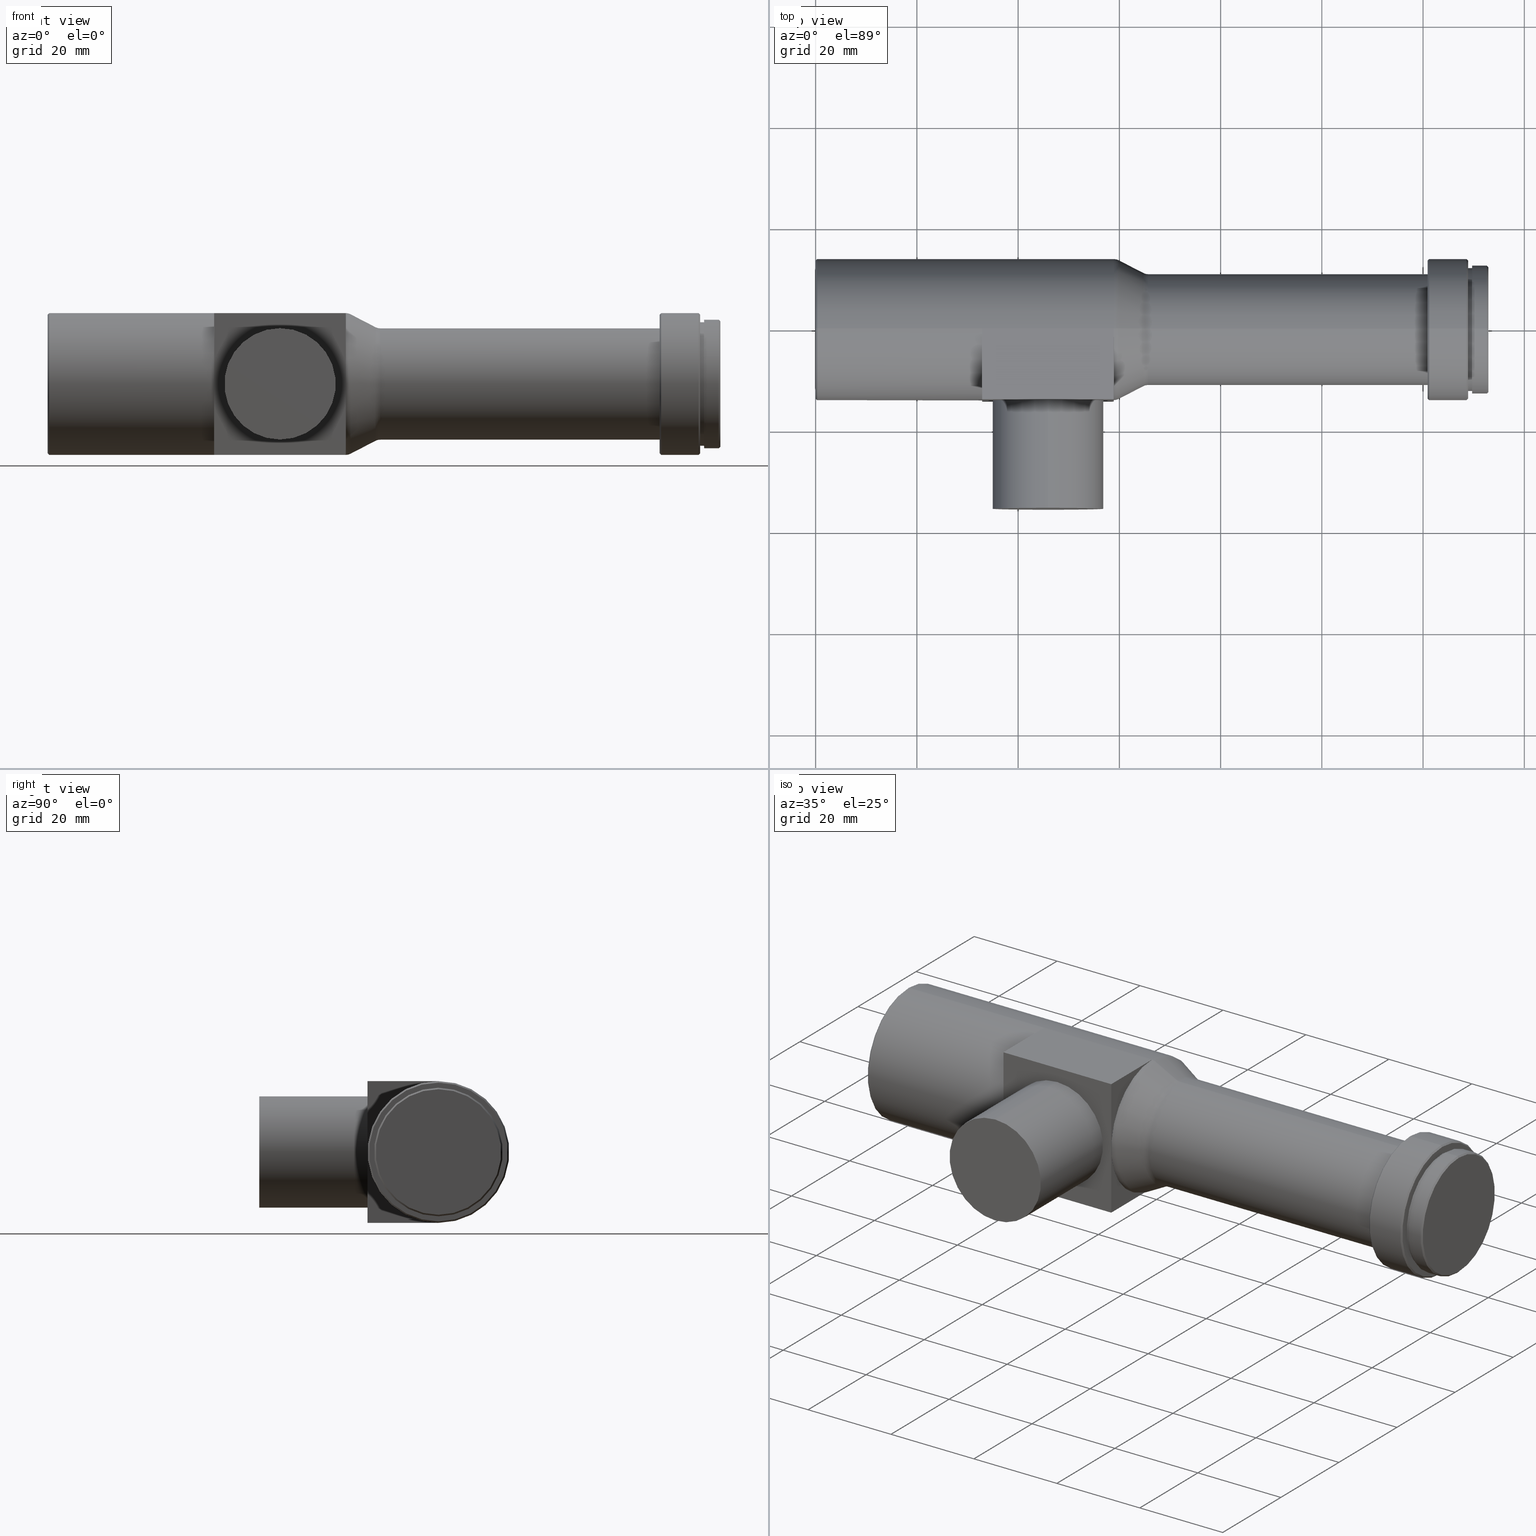
[diagram: canonical four-view strip — front | top / right | iso, engineering-drawing reading convention]
A machine part, canonical four-view strip (front | top / right | iso — engineering-drawing reading convention). The complete STEP part file that produces these views, byte-faithful:
ISO-10303-21;
HEADER;
FILE_DESCRIPTION (( 'STEP AP203' ),
    '1' );
FILE_NAME ('WWH40-63CTV3.STEP',
    '2021-05-11T01:39:35',
    ( 'Windows User' ),
    ( 'P R C' ),
    'SwSTEP 2.0',
    'SolidWorks 2017',
    '' );
FILE_SCHEMA (( 'CONFIG_CONTROL_DESIGN' ));
ENDSEC;

DATA;
#1 = EDGE_CURVE ( 'NONE', #696, #365, #950, .T. ) ;
#2 = DIRECTION ( 'NONE',  ( 0.0000000000000000000, 0.0000000000000000000, 1.000000000000000000 ) ) ;
#3 = APPLICATION_PROTOCOL_DEFINITION ( 'international standard', 'config_control_design', 1994, #1112 ) ;
#4 = DIRECTION ( 'NONE',  ( 1.000000000000000000, 0.0000000000000000000, 0.0000000000000000000 ) ) ;
#5 = CARTESIAN_POINT ( 'NONE',  ( 0.2999999999999999900, 0.0000000000000000000, -14.00000000000000000 ) ) ;
#6 = CARTESIAN_POINT ( 'NONE',  ( 128.9000000000000100, 1.677766114831874000E-015, -13.70000000000000100 ) ) ;
#7 = APPROVAL ( #84, 'δָ��' ) ;
#8 = PLANE ( 'NONE',  #206 ) ;
#9 = CYLINDRICAL_SURFACE ( 'NONE', #371, 10.99999999999999600 ) ;
#10 = ORIENTED_EDGE ( 'NONE', *, *, #809, .F. ) ;
#11 = ORIENTED_EDGE ( 'NONE', *, *, #559, .F. ) ;
#12 = DIRECTION ( 'NONE',  ( -1.000000000000000000, -0.0000000000000000000, -0.0000000000000000000 ) ) ;
#13 = ORIENTED_EDGE ( 'NONE', *, *, #867, .T. ) ;
#14 = AXIS2_PLACEMENT_3D ( 'NONE', #613, #4, #945 ) ;
#15 = DIRECTION ( 'NONE',  ( 0.0000000000000000000, 0.0000000000000000000, -1.000000000000000000 ) ) ;
#16 = LINE ( 'NONE', #903, #902 ) ;
#17 = EDGE_CURVE ( 'NONE', #844, #782, #157, .T. ) ;
#18 = CARTESIAN_POINT ( 'NONE',  ( 58.89999999999999100, 0.0000000000000000000, -14.00000000000000000 ) ) ;
#19 = DIRECTION ( 'NONE',  ( 0.0000000000000000000, 0.0000000000000000000, 1.000000000000000000 ) ) ;
#20 = CONICAL_SURFACE ( 'NONE', #362, 13.70000000000000100, 0.7853981633974569400 ) ;
#21 = DIRECTION ( 'NONE',  ( -1.000000000000000000, -0.0000000000000000000, -0.0000000000000000000 ) ) ;
#22 = LINE ( 'NONE', #434, #372 ) ;
#23 = VERTEX_POINT ( 'NONE', #822 ) ;
#24 = CIRCLE ( 'NONE', #98, 13.99999999999999800 ) ;
#25 = ORIENTED_EDGE ( 'NONE', *, *, #889, .F. ) ;
#26 = ORIENTED_EDGE ( 'NONE', *, *, #323, .T. ) ;
#27 = DIRECTION ( 'NONE',  ( 1.000000000000000000, 0.0000000000000000000, 0.0000000000000000000 ) ) ;
#28 = AXIS2_PLACEMENT_3D ( 'NONE', #879, #884, #544 ) ;
#29 = EDGE_CURVE ( 'NONE', #1113, #687, #1016, .T. ) ;
#30 = CIRCLE ( 'NONE', #1086, 14.00000000000000000 ) ;
#31 = AXIS2_PLACEMENT_3D ( 'NONE', #936, #681, #166 ) ;
#32 = DIRECTION ( 'NONE',  ( 0.0000000000000000000, 0.0000000000000000000, 1.000000000000000000 ) ) ;
#33 = FACE_OUTER_BOUND ( 'NONE', #653, .T. ) ;
#34 = VECTOR ( 'NONE', #485, 1000.000000000000000 ) ;
#35 = ORIENTED_EDGE ( 'NONE', *, *, #917, .F. ) ;
#36 = CARTESIAN_POINT ( 'NONE',  ( 128.9000000000000100, 0.0000000000000000000, 13.70000000000000100 ) ) ;
#37 = EDGE_LOOP ( 'NONE', ( #845, #769, #1035, #738 ) ) ;
#38 = ORIENTED_EDGE ( 'NONE', *, *, #169, .F. ) ;
#39 = FACE_OUTER_BOUND ( 'NONE', #119, .T. ) ;
#40 = CARTESIAN_POINT ( 'NONE',  ( 0.0000000000000000000, 0.0000000000000000000, 0.0000000000000000000 ) ) ;
#41 = AXIS2_PLACEMENT_3D ( 'NONE', #217, #229, #318 ) ;
#42 = CARTESIAN_POINT ( 'NONE',  ( 65.68662072461721400, 1.360800869613109900E-015, -11.00000000000000200 ) ) ;
#43 = CARTESIAN_POINT ( 'NONE',  ( 32.89999999999999900, 0.0000000000000000000, -13.99999999999999800 ) ) ;
#44 = ORIENTED_EDGE ( 'NONE', *, *, #17, .F. ) ;
#45 = CIRCLE ( 'NONE', #448, 11.00000000000000000 ) ;
#46 = FACE_OUTER_BOUND ( 'NONE', #1098, .T. ) ;
#47 = CARTESIAN_POINT ( 'NONE',  ( 0.0000000000000000000, 0.0000000000000000000, 12.20000000000000500 ) ) ;
#48 = VERTEX_POINT ( 'NONE', #561 ) ;
#49 = VECTOR ( 'NONE', #614, 1000.000000000000000 ) ;
#50 = EDGE_CURVE ( 'NONE', #655, #526, #1093, .T. ) ;
#51 = CC_DESIGN_PERSON_AND_ORGANIZATION_ASSIGNMENT ( #963, #262, ( #517 ) ) ;
#52 = VERTEX_POINT ( 'NONE', #139 ) ;
#53 = DIRECTION ( 'NONE',  ( -1.000000000000000000, -0.0000000000000000000, -0.0000000000000000000 ) ) ;
#54 = CARTESIAN_POINT ( 'NONE',  ( 65.68662072461721400, 0.0000000000000000000, 0.0000000000000000000 ) ) ;
#55 = AXIS2_PLACEMENT_3D ( 'NONE', #352, #531, #15 ) ;
#56 = DIRECTION ( 'NONE',  ( -1.000000000000000000, -0.0000000000000000000, -0.0000000000000000000 ) ) ;
#57 = DIRECTION ( 'NONE',  ( -0.0000000000000000000, 1.000000000000000000, -0.0000000000000000000 ) ) ;
#58 = EDGE_CURVE ( 'NONE', #525, #48, #794, .T. ) ;
#59 = CARTESIAN_POINT ( 'NONE',  ( 128.6000000000000200, 0.0000000000000000000, 14.00000000000000000 ) ) ;
#60 = CARTESIAN_POINT ( 'NONE',  ( 0.0000000000000000000, 0.0000000000000000000, 14.00000000000000000 ) ) ;
#61 = CARTESIAN_POINT ( 'NONE',  ( 0.0000000000000000000, 0.0000000000000000000, -14.00000000000000000 ) ) ;
#62 = ADVANCED_FACE ( 'NONE', ( #565 ), #361, .T. ) ;
#63 = VECTOR ( 'NONE', #1023, 1000.000000000000000 ) ;
#64 = AXIS2_PLACEMENT_3D ( 'NONE', #1091, #995, #1006 ) ;
#65 = VECTOR ( 'NONE', #539, 1000.000000000000000 ) ;
#66 = VERTEX_POINT ( 'NONE', #743 ) ;
#67 = ORIENTED_EDGE ( 'NONE', *, *, #959, .F. ) ;
#68 = CARTESIAN_POINT ( 'NONE',  ( 128.9000000000000100, 0.0000000000000000000, 13.70000000000000100 ) ) ;
#69 = VERTEX_POINT ( 'NONE', #231 ) ;
#70 = CARTESIAN_POINT ( 'NONE',  ( 58.91337927538280900, 0.0000000000000000000, 0.0000000000000000000 ) ) ;
#71 = ORIENTED_EDGE ( 'NONE', *, *, #674, .F. ) ;
#72 = TOROIDAL_SURFACE ( 'NONE', #1011, 12.00000000000000000, 2.000000000000000400 ) ;
#73 = ADVANCED_FACE ( 'NONE', ( #348 ), #20, .T. ) ;
#74 = CARTESIAN_POINT ( 'NONE',  ( 45.89999999999999900, -35.39999999999999900, -10.99999999999999600 ) ) ;
#75 = CARTESIAN_POINT ( 'NONE',  ( 121.2000000000000000, 1.714505518806294600E-015, 14.00000000000000000 ) ) ;
#76 = DIRECTION ( 'NONE',  ( 0.0000000000000000000, 0.0000000000000000000, -1.000000000000000000 ) ) ;
#77 = EDGE_CURVE ( 'NONE', #978, #223, #523, .T. ) ;
#78 = ADVANCED_FACE ( 'NONE', ( #536 ), #309, .F. ) ;
#79 = CARTESIAN_POINT ( 'NONE',  ( 45.89999999999999900, 0.0000000000000000000, 0.0000000000000000000 ) ) ;
#80 = APPROVAL_ROLE ( '' ) ;
#81 = CARTESIAN_POINT ( 'NONE',  ( 58.91337927538280900, 0.0000000000000000000, 0.0000000000000000000 ) ) ;
#82 = FACE_BOUND ( 'NONE', #938, .T. ) ;
#83 = EDGE_LOOP ( 'NONE', ( #955, #804, #910, #11 ) ) ;
#84 = APPROVAL_STATUS ( 'not_yet_approved' ) ;
#85 = CARTESIAN_POINT ( 'NONE',  ( 32.89999999999999900, -14.00000000000000000, 14.00000000000000000 ) ) ;
#86 = DIRECTION ( 'NONE',  ( -0.0000000000000000000, 0.0000000000000000000, 1.000000000000000000 ) ) ;
#87 = DIRECTION ( 'NONE',  ( -0.0000000000000000000, -0.0000000000000000000, -1.000000000000000000 ) ) ;
#88 = AXIS2_PLACEMENT_3D ( 'NONE', #960, #787, #364 ) ;
#89 = DIRECTION ( 'NONE',  ( 0.0000000000000000000, 0.0000000000000000000, -1.000000000000000000 ) ) ;
#90 = APPROVAL_STATUS ( 'not_yet_approved' ) ;
#91 = EDGE_CURVE ( 'NONE', #353, #294, #140, .T. ) ;
#92 = VECTOR ( 'NONE', #220, 1000.000000000000000 ) ;
#93 = ORIENTED_EDGE ( 'NONE', *, *, #183, .F. ) ;
#94 = FACE_OUTER_BOUND ( 'NONE', #387, .T. ) ;
#95 = CIRCLE ( 'NONE', #297, 1.999999999999998200 ) ;
#96 = EDGE_LOOP ( 'NONE', ( #630, #349, #299, #227 ) ) ;
#97 = DIRECTION ( 'NONE',  ( 0.0000000000000000000, 0.0000000000000000000, 1.000000000000000000 ) ) ;
#98 = AXIS2_PLACEMENT_3D ( 'NONE', #187, #786, #1046 ) ;
#99 = EDGE_LOOP ( 'NONE', ( #1078, #112 ) ) ;
#100 = ORIENTED_EDGE ( 'NONE', *, *, #378, .T. ) ;
#101 = CARTESIAN_POINT ( 'NONE',  ( 120.9000000000000100, 0.0000000000000000000, 0.0000000000000000000 ) ) ;
#102 = LINE ( 'NONE', #987, #984 ) ;
#103 = DIRECTION ( 'NONE',  ( 0.0000000000000000000, 0.0000000000000000000, 1.000000000000000000 ) ) ;
#104 = AXIS2_PLACEMENT_3D ( 'NONE', #1102, #1026, #1018 ) ;
#105 = APPROVAL_DATE_TIME ( #535, #893 ) ;
#106 = FACE_OUTER_BOUND ( 'NONE', #886, .T. ) ;
#107 = CIRCLE ( 'NONE', #641, 13.77643528631190000 ) ;
#108 = ORIENTED_EDGE ( 'NONE', *, *, #1066, .T. ) ;
#109 = CARTESIAN_POINT ( 'NONE',  ( 0.0000000000000000000, 0.0000000000000000000, 13.99999999999999800 ) ) ;
#110 = ORIENTED_EDGE ( 'NONE', *, *, #610, .T. ) ;
#111 = AXIS2_PLACEMENT_3D ( 'NONE', #473, #815, #566 ) ;
#112 = ORIENTED_EDGE ( 'NONE', *, *, #1031, .F. ) ;
#113 = EDGE_CURVE ( 'NONE', #713, #594, #1108, .T. ) ;
#114 = DIRECTION ( 'NONE',  ( 0.0000000000000000000, 0.0000000000000000000, 1.000000000000000000 ) ) ;
#115 = DIRECTION ( 'NONE',  ( 0.0000000000000000000, 0.0000000000000000000, 1.000000000000000000 ) ) ;
#116 = FACE_OUTER_BOUND ( 'NONE', #627, .T. ) ;
#117 = DIRECTION ( 'NONE',  ( -1.000000000000000000, -0.0000000000000000000, -0.0000000000000000000 ) ) ;
#118 = FACE_OUTER_BOUND ( 'NONE', #799, .T. ) ;
#119 = EDGE_LOOP ( 'NONE', ( #254, #608, #640, #723 ) ) ;
#120 = CONICAL_SURFACE ( 'NONE', #55, 14.00000000000000000, 0.7853981633974481700 ) ;
#121 = VERTEX_POINT ( 'NONE', #492 ) ;
#122 = VERTEX_POINT ( 'NONE', #59 ) ;
#123 = ORIENTED_EDGE ( 'NONE', *, *, #718, .T. ) ;
#124 = ORIENTED_EDGE ( 'NONE', *, *, #729, .T. ) ;
#125 = CC_DESIGN_APPROVAL ( #7, ( #948 ) ) ;
#126 = DIRECTION ( 'NONE',  ( 1.000000000000000000, 0.0000000000000000000, 0.0000000000000000000 ) ) ;
#127 = AXIS2_PLACEMENT_3D ( 'NONE', #547, #27, #894 ) ;
#128 = DIRECTION ( 'NONE',  ( -1.000000000000000000, -0.0000000000000000000, -0.0000000000000000000 ) ) ;
#129 = CARTESIAN_POINT ( 'NONE',  ( 64.76777488686968800, 0.0000000000000000000, 11.22356471368810000 ) ) ;
#130 = CALENDAR_DATE ( 2021, 11, 5 ) ;
#131 = VECTOR ( 'NONE', #301, 1000.000000000000000 ) ;
#132 = EDGE_CURVE ( 'NONE', #687, #1113, #1030, .T. ) ;
#133 = DIRECTION ( 'NONE',  ( -1.000000000000000000, -0.0000000000000000000, -0.0000000000000000000 ) ) ;
#134 = ORIENTED_EDGE ( 'NONE', *, *, #506, .T. ) ;
#135 = CARTESIAN_POINT ( 'NONE',  ( 132.9000000000000100, 0.0000000000000000000, 0.0000000000000000000 ) ) ;
#136 = DIRECTION ( 'NONE',  ( -0.0000000000000000000, 1.000000000000000000, -0.0000000000000000000 ) ) ;
#137 = DIRECTION ( 'NONE',  ( -0.0000000000000000000, 0.0000000000000000000, 1.000000000000000000 ) ) ;
#138 = PERSON_AND_ORGANIZATION ( #876, #200 ) ;
#139 = CARTESIAN_POINT ( 'NONE',  ( 58.89999999999999100, 0.0000000000000000000, 14.00000000000000000 ) ) ;
#140 = CIRCLE ( 'NONE', #218, 12.40000000000000400 ) ;
#141 = VERTEX_POINT ( 'NONE', #658 ) ;
#142 = EDGE_LOOP ( 'NONE', ( #768, #831, #888, #722 ) ) ;
#143 = CC_DESIGN_PERSON_AND_ORGANIZATION_ASSIGNMENT ( #1044, #1029, ( #538 ) ) ;
#144 = ORIENTED_EDGE ( 'NONE', *, *, #973, .T. ) ;
#145 = ORIENTED_EDGE ( 'NONE', *, *, #378, .F. ) ;
#146 = ADVANCED_FACE ( 'NONE', ( #116 ), #402, .T. ) ;
#147 = DIRECTION ( 'NONE',  ( -1.000000000000000000, -0.0000000000000000000, -0.0000000000000000000 ) ) ;
#148 = TOROIDAL_SURFACE ( 'NONE', #631, 13.00000000000000000, 1.999999999999998200 ) ;
#149 = DIRECTION ( 'NONE',  ( -1.000000000000000000, -0.0000000000000000000, -0.0000000000000000000 ) ) ;
#150 = ADVANCED_FACE ( 'NONE', ( #803 ), #648, .T. ) ;
#151 = FACE_OUTER_BOUND ( 'NONE', #375, .T. ) ;
#152 = DIRECTION ( 'NONE',  ( -1.000000000000000000, -0.0000000000000000000, -0.0000000000000000000 ) ) ;
#153 = DIRECTION ( 'NONE',  ( -1.000000000000000000, -0.0000000000000000000, -0.0000000000000000000 ) ) ;
#154 = VERTEX_POINT ( 'NONE', #826 ) ;
#155 = AXIS2_PLACEMENT_3D ( 'NONE', #388, #734, #991 ) ;
#156 = LOCAL_TIME ( 9, 39, 35.00000000000000000, #175 ) ;
#157 = LINE ( 'NONE', #731, #131 ) ;
#158 = ORIENTED_EDGE ( 'NONE', *, *, #50, .F. ) ;
#159 = ADVANCED_FACE ( 'NONE', ( #776 ), #201, .T. ) ;
#160 = EDGE_CURVE ( 'NONE', #400, #781, #422, .T. ) ;
#161 = VERTEX_POINT ( 'NONE', #1072 ) ;
#162 = DIRECTION ( 'NONE',  ( -1.000000000000000000, -0.0000000000000000000, -0.0000000000000000000 ) ) ;
#163 = ORIENTED_EDGE ( 'NONE', *, *, #624, .T. ) ;
#164 = FACE_OUTER_BOUND ( 'NONE', #458, .T. ) ;
#165 = CARTESIAN_POINT ( 'NONE',  ( 58.91337927538280900, 1.469576158976823900E-015, -12.00000000000000000 ) ) ;
#166 = DIRECTION ( 'NONE',  ( 0.0000000000000000000, 0.0000000000000000000, 1.000000000000000000 ) ) ;
#167 = PLANE ( 'NONE',  #505 ) ;
#168 = APPROVAL_STATUS ( 'not_yet_approved' ) ;
#169 = EDGE_CURVE ( 'NONE', #844, #525, #623, .T. ) ;
#170 = DIRECTION ( 'NONE',  ( -1.000000000000000000, -0.0000000000000000000, -0.0000000000000000000 ) ) ;
#171 = APPROVAL ( #90, 'δָ��' ) ;
#172 = CIRCLE ( 'NONE', #635, 13.99999999999999800 ) ;
#173 = DIRECTION ( 'NONE',  ( -1.000000000000000000, 0.0000000000000000000, 0.0000000000000000000 ) ) ;
#174 = DIRECTION ( 'NONE',  ( 1.000000000000000000, 0.0000000000000000000, 0.0000000000000000000 ) ) ;
#175 = COORDINATED_UNIVERSAL_TIME_OFFSET ( 8, 0, .AHEAD. ) ;
#176 = AXIS2_PLACEMENT_3D ( 'NONE', #853, #943, #851 ) ;
#177 = DIRECTION ( 'NONE',  ( 0.0000000000000000000, 0.0000000000000000000, 1.000000000000000000 ) ) ;
#178 = EDGE_LOOP ( 'NONE', ( #134, #805 ) ) ;
#179 = FACE_OUTER_BOUND ( 'NONE', #226, .T. ) ;
#180 = ORIENTED_EDGE ( 'NONE', *, *, #537, .F. ) ;
#181 = EDGE_LOOP ( 'NONE', ( #373, #833, #377 ) ) ;
#182 = ORIENTED_EDGE ( 'NONE', *, *, #785, .T. ) ;
#183 = EDGE_CURVE ( 'NONE', #495, #951, #293, .T. ) ;
#184 = DIRECTION ( 'NONE',  ( 0.0000000000000000000, -1.224646799147353500E-016, 1.000000000000000000 ) ) ;
#185 = DATE_TIME_ROLE ( 'classification_date' ) ;
#186 = DIRECTION ( 'NONE',  ( 0.0000000000000000000, 0.0000000000000000000, 1.000000000000000000 ) ) ;
#187 = CARTESIAN_POINT ( 'NONE',  ( 58.89999999999999100, 0.0000000000000000000, 0.0000000000000000000 ) ) ;
#188 = CC_DESIGN_PERSON_AND_ORGANIZATION_ASSIGNMENT ( #338, #351, ( #948 ) ) ;
#189 = VECTOR ( 'NONE', #360, 1000.000000000000000 ) ;
#190 = SHAPE_DEFINITION_REPRESENTATION ( #436, #693 ) ;
#191 = ORIENTED_EDGE ( 'NONE', *, *, #559, .T. ) ;
#192 = EDGE_CURVE ( 'NONE', #781, #862, #577, .T. ) ;
#193 = VECTOR ( 'NONE', #763, 1000.000000000000000 ) ;
#194 = CC_DESIGN_PERSON_AND_ORGANIZATION_ASSIGNMENT ( #138, #679, ( #517 ) ) ;
#195 = DIRECTION ( 'NONE',  ( -1.000000000000000000, -0.0000000000000000000, -0.0000000000000000000 ) ) ;
#196 = DIRECTION ( 'NONE',  ( 0.0000000000000000000, 0.0000000000000000000, 1.000000000000000000 ) ) ;
#197 = EDGE_CURVE ( 'NONE', #873, #122, #906, .T. ) ;
#198 = CARTESIAN_POINT ( 'NONE',  ( 58.89999999999999100, -14.00000000000000000, -14.00000000000000000 ) ) ;
#199 = LINE ( 'NONE', #645, #587 ) ;
#200 = ORGANIZATION ( 'δָ��', 'δָ��', '' ) ;
#201 = CYLINDRICAL_SURFACE ( 'NONE', #471, 14.00000000000000000 ) ;
#202 = CONICAL_SURFACE ( 'NONE', #1028, 11.22356471368810000, 0.4773453823736718000 ) ;
#203 = ORIENTED_EDGE ( 'NONE', *, *, #690, .T. ) ;
#204 = DIRECTION ( 'NONE',  ( -1.000000000000000000, -0.0000000000000000000, -0.0000000000000000000 ) ) ;
#205 = ORIENTED_EDGE ( 'NONE', *, *, #275, .F. ) ;
#206 = AXIS2_PLACEMENT_3D ( 'NONE', #283, #530, #612 ) ;
#207 = EDGE_CURVE ( 'NONE', #951, #1038, #396, .T. ) ;
#208 = DIRECTION ( 'NONE',  ( -1.000000000000000000, -0.0000000000000000000, -0.0000000000000000000 ) ) ;
#209 = EDGE_CURVE ( 'NONE', #651, #979, #369, .T. ) ;
#210 = DIRECTION ( 'NONE',  ( -1.000000000000000000, -0.0000000000000000000, -0.0000000000000000000 ) ) ;
#211 = ORIENTED_EDGE ( 'NONE', *, *, #457, .T. ) ;
#212 = DIRECTION ( 'NONE',  ( 0.0000000000000000000, 0.0000000000000000000, 1.000000000000000000 ) ) ;
#213 = ORIENTED_EDGE ( 'NONE', *, *, #197, .F. ) ;
#214 = ORIENTED_EDGE ( 'NONE', *, *, #1014, .T. ) ;
#215 = AXIS2_PLACEMENT_3D ( 'NONE', #1022, #1101, #783 ) ;
#216 = DIRECTION ( 'NONE',  ( 0.0000000000000000000, -1.000000000000000000, 0.0000000000000000000 ) ) ;
#217 = CARTESIAN_POINT ( 'NONE',  ( 0.0000000000000000000, 0.0000000000000000000, 0.0000000000000000000 ) ) ;
#218 = AXIS2_PLACEMENT_3D ( 'NONE', #750, #1089, #646 ) ;
#219 = CARTESIAN_POINT ( 'NONE',  ( 32.89999999999999900, 0.0000000000000000000, 0.0000000000000000000 ) ) ;
#220 = DIRECTION ( 'NONE',  ( -1.000000000000000000, -0.0000000000000000000, -0.0000000000000000000 ) ) ;
#221 = LOCAL_TIME ( 9, 39, 35.00000000000000000, #1107 ) ;
#222 = EDGE_CURVE ( 'NONE', #1038, #951, #883, .T. ) ;
#223 = VERTEX_POINT ( 'NONE', #75 ) ;
#224 = VECTOR ( 'NONE', #1017, 1000.000000000000000 ) ;
#225 = FACE_OUTER_BOUND ( 'NONE', #444, .T. ) ;
#226 = EDGE_LOOP ( 'NONE', ( #976, #779, #712, #909 ) ) ;
#227 = ORIENTED_EDGE ( 'NONE', *, *, #867, .F. ) ;
#228 = ORIENTED_EDGE ( 'NONE', *, *, #1014, .F. ) ;
#229 = DIRECTION ( 'NONE',  ( -1.000000000000000000, -0.0000000000000000000, -0.0000000000000000000 ) ) ;
#230 = DIRECTION ( 'NONE',  ( -1.000000000000000000, -0.0000000000000000000, -0.0000000000000000000 ) ) ;
#231 = CARTESIAN_POINT ( 'NONE',  ( 121.2000000000000000, 0.0000000000000000000, -14.00000000000000000 ) ) ;
#232 = DIRECTION ( 'NONE',  ( 0.0000000000000000000, 0.0000000000000000000, 1.000000000000000000 ) ) ;
#233 = DIRECTION ( 'NONE',  ( 0.0000000000000000000, 0.0000000000000000000, -1.000000000000000000 ) ) ;
#234 = CARTESIAN_POINT ( 'NONE',  ( 65.68662072461721400, 1.592040838891559100E-015, -13.00000000000000000 ) ) ;
#235 = AXIS2_PLACEMENT_3D ( 'NONE', #490, #147, #498 ) ;
#236 = ADVANCED_FACE ( 'NONE', ( #1052 ), #423, .F. ) ;
#237 = DIRECTION ( 'NONE',  ( 0.0000000000000000000, 0.0000000000000000000, 1.000000000000000000 ) ) ;
#238 = CYLINDRICAL_SURFACE ( 'NONE', #1004, 13.99999999999999800 ) ;
#239 = VERTEX_POINT ( 'NONE', #1027 ) ;
#240 = EDGE_LOOP ( 'NONE', ( #158, #719, #298 ) ) ;
#241 = VERTEX_POINT ( 'NONE', #503 ) ;
#242 = DIRECTION ( 'NONE',  ( 0.0000000000000000000, -1.000000000000000000, 0.0000000000000000000 ) ) ;
#243 = DIRECTION ( 'NONE',  ( 0.0000000000000000000, 0.0000000000000000000, -1.000000000000000000 ) ) ;
#244 = LINE ( 'NONE', #934, #446 ) ;
#245 = ADVANCED_FACE ( 'NONE', ( #415 ), #72, .T. ) ;
#246 = AXIS2_PLACEMENT_3D ( 'NONE', #715, #204, #295 ) ;
#247 = CARTESIAN_POINT ( 'NONE',  ( 58.91337927538280900, 0.0000000000000000000, 12.00000000000000000 ) ) ;
#248 = AXIS2_PLACEMENT_3D ( 'NONE', #914, #483, #574 ) ;
#249 = DIRECTION ( 'NONE',  ( -1.000000000000000000, -0.0000000000000000000, -0.0000000000000000000 ) ) ;
#250 = CARTESIAN_POINT ( 'NONE',  ( 132.9000000000000100, 0.0000000000000000000, 12.40000000000000400 ) ) ;
#251 = CYLINDRICAL_SURFACE ( 'NONE', #913, 12.20000000000000500 ) ;
#252 = EDGE_CURVE ( 'NONE', #873, #69, #244, .T. ) ;
#253 = VECTOR ( 'NONE', #933, 1000.000000000000000 ) ;
#254 = ORIENTED_EDGE ( 'NONE', *, *, #714, .F. ) ;
#255 = FACE_OUTER_BOUND ( 'NONE', #493, .T. ) ;
#256 = CARTESIAN_POINT ( 'NONE',  ( 129.7000000000000200, 0.0000000000000000000, 0.0000000000000000000 ) ) ;
#257 = APPLICATION_CONTEXT ( 'configuration controlled 3d designs of mechanical parts and assemblies' ) ;
#258 = ORIENTED_EDGE ( 'NONE', *, *, #735, .T. ) ;
#259 = CARTESIAN_POINT ( 'NONE',  ( 128.9000000000000100, 0.0000000000000000000, 0.0000000000000000000 ) ) ;
#260 = ORIENTED_EDGE ( 'NONE', *, *, #749, .T. ) ;
#261 = DIRECTION ( 'NONE',  ( 0.0000000000000000000, -1.000000000000000000, 0.0000000000000000000 ) ) ;
#262 = PERSON_AND_ORGANIZATION_ROLE ( 'creator' ) ;
#263 = CARTESIAN_POINT ( 'NONE',  ( 32.89999999999999900, -14.00000000000000000, 14.00000000000000000 ) ) ;
#264 = AXIS2_PLACEMENT_3D ( 'NONE', #101, #437, #701 ) ;
#265 = CARTESIAN_POINT ( 'NONE',  ( 128.9000000000000100, 0.0000000000000000000, 12.20000000000000500 ) ) ;
#266 = EDGE_CURVE ( 'NONE', #161, #1005, #390, .T. ) ;
#267 = PLANE ( 'NONE',  #14 ) ;
#268 = DIRECTION ( 'NONE',  ( -0.0000000000000000000, 1.000000000000000000, -0.0000000000000000000 ) ) ;
#269 = AXIS2_PLACEMENT_3D ( 'NONE', #509, #1103, #684 ) ;
#270 = CARTESIAN_POINT ( 'NONE',  ( 132.9000000000000100, 0.0000000000000000000, 0.0000000000000000000 ) ) ;
#271 = CIRCLE ( 'NONE', #433, 2.000000000000000000 ) ;
#272 = ORIENTED_EDGE ( 'NONE', *, *, #209, .T. ) ;
#273 = ORIENTED_EDGE ( 'NONE', *, *, #610, .F. ) ;
#274 = ORIENTED_EDGE ( 'NONE', *, *, #841, .T. ) ;
#275 = EDGE_CURVE ( 'NONE', #241, #979, #1100, .T. ) ;
#276 = CARTESIAN_POINT ( 'NONE',  ( 120.9000000000000100, 1.347111479062088400E-015, -11.00000000000000000 ) ) ;
#277 = VERTEX_POINT ( 'NONE', #861 ) ;
#278 = CARTESIAN_POINT ( 'NONE',  ( 129.7000000000000200, 0.0000000000000000000, 0.0000000000000000000 ) ) ;
#279 = VECTOR ( 'NONE', #905, 1000.000000000000000 ) ;
#280 = CARTESIAN_POINT ( 'NONE',  ( 0.0000000000000000000, 0.0000000000000000000, 0.0000000000000000000 ) ) ;
#281 = CC_DESIGN_DATE_AND_TIME_ASSIGNMENT ( #308, #600, ( #948 ) ) ;
#282 = VECTOR ( 'NONE', #732, 1000.000000000000000 ) ;
#283 = CARTESIAN_POINT ( 'NONE',  ( 58.89999999999999100, -14.00000000000000000, 14.00000000000000000 ) ) ;
#284 = DIRECTION ( 'NONE',  ( 0.0000000000000000000, 0.0000000000000000000, 1.000000000000000000 ) ) ;
#285 = CARTESIAN_POINT ( 'NONE',  ( 64.76777488686968800, 0.0000000000000000000, 0.0000000000000000000 ) ) ;
#286 = AXIS2_PLACEMENT_3D ( 'NONE', #842, #170, #1099 ) ;
#287 = VECTOR ( 'NONE', #195, 1000.000000000000000 ) ;
#288 = ORIENTED_EDGE ( 'NONE', *, *, #567, .T. ) ;
#289 = CIRCLE ( 'NONE', #920, 14.00000000000000000 ) ;
#290 = ORIENTED_EDGE ( 'NONE', *, *, #113, .F. ) ;
#291 = EDGE_CURVE ( 'NONE', #52, #655, #878, .T. ) ;
#292 = UNCERTAINTY_MEASURE_WITH_UNIT (LENGTH_MEASURE( 1.000000000000000100E-005 ), #865, 'distance_accuracy_value', 'NONE');
#293 = LINE ( 'NONE', #47, #92 ) ;
#294 = VERTEX_POINT ( 'NONE', #1010 ) ;
#295 = DIRECTION ( 'NONE',  ( 0.0000000000000000000, 0.0000000000000000000, 1.000000000000000000 ) ) ;
#296 = ORIENTED_EDGE ( 'NONE', *, *, #935, .F. ) ;
#297 = AXIS2_PLACEMENT_3D ( 'NONE', #234, #836, #927 ) ;
#298 = ORIENTED_EDGE ( 'NONE', *, *, #516, .F. ) ;
#299 = ORIENTED_EDGE ( 'NONE', *, *, #644, .T. ) ;
#300 = CARTESIAN_POINT ( 'NONE',  ( 59.83222511313034200, 1.700816128255273400E-015, -13.77643528631190000 ) ) ;
#301 = DIRECTION ( 'NONE',  ( -1.000000000000000000, -0.0000000000000000000, -0.0000000000000000000 ) ) ;
#302 = CARTESIAN_POINT ( 'NONE',  ( 32.89999999999999900, 0.0000000000000000000, 14.00000000000000000 ) ) ;
#303 = AXIS2_PLACEMENT_3D ( 'NONE', #733, #216, #307 ) ;
#304 = DIRECTION ( 'NONE',  ( -1.000000000000000000, 0.0000000000000000000, 0.0000000000000000000 ) ) ;
#305 = DIRECTION ( 'NONE',  ( 1.000000000000000000, 0.0000000000000000000, 0.0000000000000000000 ) ) ;
#306 = AXIS2_PLACEMENT_3D ( 'NONE', #656, #321, #395 ) ;
#307 = DIRECTION ( 'NONE',  ( 0.0000000000000000000, -0.0000000000000000000, -1.000000000000000000 ) ) ;
#308 = DATE_AND_TIME ( #576, #793 ) ;
#309 = TOROIDAL_SURFACE ( 'NONE', #692, 13.00000000000000000, 1.999999999999998200 ) ;
#310 = DIRECTION ( 'NONE',  ( 0.0000000000000000000, 0.0000000000000000000, 1.000000000000000000 ) ) ;
#311 = CYLINDRICAL_SURFACE ( 'NONE', #620, 13.99999999999999800 ) ;
#312 = VECTOR ( 'NONE', #117, 1000.000000000000000 ) ;
#313 = ORIENTED_EDGE ( 'NONE', *, *, #435, .F. ) ;
#314 = EDGE_LOOP ( 'NONE', ( #182, #123 ) ) ;
#315 = ORIENTED_EDGE ( 'NONE', *, *, #690, .F. ) ;
#316 = EDGE_CURVE ( 'NONE', #753, #594, #1048, .T. ) ;
#317 = DIRECTION ( 'NONE',  ( -1.000000000000000000, 0.0000000000000000000, -0.0000000000000000000 ) ) ;
#318 = DIRECTION ( 'NONE',  ( 0.0000000000000000000, 0.0000000000000000000, 1.000000000000000000 ) ) ;
#319 = CARTESIAN_POINT ( 'NONE',  ( 45.89999999999999900, -35.39999999999999900, 0.0000000000000000000 ) ) ;
#320 =( GEOMETRIC_REPRESENTATION_CONTEXT ( 3 ) GLOBAL_UNCERTAINTY_ASSIGNED_CONTEXT ( ( #292 ) ) GLOBAL_UNIT_ASSIGNED_CONTEXT ( ( #865, #604, #431 ) ) REPRESENTATION_CONTEXT ( 'NONE', 'WORKASPACE' ) );
#321 = DIRECTION ( 'NONE',  ( -1.000000000000000000, -0.0000000000000000000, -0.0000000000000000000 ) ) ;
#322 = DIRECTION ( 'NONE',  ( 0.0000000000000000000, 0.0000000000000000000, 1.000000000000000000 ) ) ;
#323 = EDGE_CURVE ( 'NONE', #1113, #1094, #956, .T. ) ;
#324 = FACE_OUTER_BOUND ( 'NONE', #1111, .T. ) ;
#325 = ORIENTED_EDGE ( 'NONE', *, *, #729, .F. ) ;
#326 = CIRCLE ( 'NONE', #1049, 13.70000000000000100 ) ;
#327 = ORIENTED_EDGE ( 'NONE', *, *, #572, .T. ) ;
#328 = CARTESIAN_POINT ( 'NONE',  ( 120.9000000000000100, 0.0000000000000000000, 11.00000000000000000 ) ) ;
#329 = DIRECTION ( 'NONE',  ( 0.0000000000000000000, 0.0000000000000000000, 1.000000000000000000 ) ) ;
#330 = ADVANCED_FACE ( 'NONE', ( #164 ), #469, .T. ) ;
#331 = ORIENTED_EDGE ( 'NONE', *, *, #17, .T. ) ;
#332 = VECTOR ( 'NONE', #162, 1000.000000000000000 ) ;
#333 = EDGE_CURVE ( 'NONE', #772, #495, #501, .T. ) ;
#334 = DIRECTION ( 'NONE',  ( 0.0000000000000000000, 0.0000000000000000000, 1.000000000000000000 ) ) ;
#335 = ADVANCED_FACE ( 'NONE', ( #39 ), #374, .T. ) ;
#336 = DIRECTION ( 'NONE',  ( 1.000000000000000000, 0.0000000000000000000, 0.0000000000000000000 ) ) ;
#337 = AXIS2_PLACEMENT_3D ( 'NONE', #247, #242, #502 ) ;
#338 = PERSON_AND_ORGANIZATION ( #876, #200 ) ;
#339 = CONICAL_SURFACE ( 'NONE', #972, 11.22356471368810000, 0.4773453823736718000 ) ;
#340 = EDGE_LOOP ( 'NONE', ( #454, #528, #568, #1055 ) ) ;
#341 = ORIENTED_EDGE ( 'NONE', *, *, #291, .F. ) ;
#342 = EDGE_LOOP ( 'NONE', ( #740, #191, #258, #671 ) ) ;
#343 = DIRECTION ( 'NONE',  ( -1.000000000000000000, -0.0000000000000000000, -0.0000000000000000000 ) ) ;
#344 = EDGE_CURVE ( 'NONE', #122, #873, #289, .T. ) ;
#345 = CARTESIAN_POINT ( 'NONE',  ( 0.0000000000000000000, 0.0000000000000000000, 11.00000000000000000 ) ) ;
#346 = CALENDAR_DATE ( 2021, 11, 5 ) ;
#347 = FACE_OUTER_BOUND ( 'NONE', #570, .T. ) ;
#348 = FACE_OUTER_BOUND ( 'NONE', #816, .T. ) ;
#349 = ORIENTED_EDGE ( 'NONE', *, *, #1, .T. ) ;
#350 = LINE ( 'NONE', #6, #479 ) ;
#351 = PERSON_AND_ORGANIZATION_ROLE ( 'creator' ) ;
#352 = CARTESIAN_POINT ( 'NONE',  ( 0.2999999999999999900, 0.0000000000000000000, 0.0000000000000000000 ) ) ;
#353 = VERTEX_POINT ( 'NONE', #250 ) ;
#354 = CARTESIAN_POINT ( 'NONE',  ( 65.68662072461721400, 0.0000000000000000000, 13.00000000000000000 ) ) ;
#355 = DIRECTION ( 'NONE',  ( 0.0000000000000000000, 0.0000000000000000000, 1.000000000000000000 ) ) ;
#356 = AXIS2_PLACEMENT_3D ( 'NONE', #1039, #849, #86 ) ;
#357 = CYLINDRICAL_SURFACE ( 'NONE', #386, 11.00000000000000000 ) ;
#358 = CARTESIAN_POINT ( 'NONE',  ( 120.9000000000000100, 1.696135816819084200E-015, 13.70000000000000100 ) ) ;
#359 = AXIS2_PLACEMENT_3D ( 'NONE', #135, #53, #1064 ) ;
#360 = DIRECTION ( 'NONE',  ( -1.000000000000000000, -0.0000000000000000000, -0.0000000000000000000 ) ) ;
#361 = CONICAL_SURFACE ( 'NONE', #306, 12.40000000000000400, 0.7853981633974569400 ) ;
#362 = AXIS2_PLACEMENT_3D ( 'NONE', #994, #56, #918 ) ;
#363 = CC_DESIGN_APPROVAL ( #893, ( #538 ) ) ;
#364 = DIRECTION ( 'NONE',  ( 0.0000000000000000000, 0.0000000000000000000, 1.000000000000000000 ) ) ;
#365 = VERTEX_POINT ( 'NONE', #700 ) ;
#366 = CARTESIAN_POINT ( 'NONE',  ( 64.76777488686968800, 1.530808498934191500E-015, -11.22356471368810000 ) ) ;
#367 = CIRCLE ( 'NONE', #725, 13.70000000000000100 ) ;
#368 = PERSON_AND_ORGANIZATION ( #876, #200 ) ;
#369 = LINE ( 'NONE', #771, #63 ) ;
#370 = VECTOR ( 'NONE', #379, 1000.000000000000000 ) ;
#371 = AXIS2_PLACEMENT_3D ( 'NONE', #79, #268, #682 ) ;
#372 = VECTOR ( 'NONE', #609, 1000.000000000000000 ) ;
#373 = ORIENTED_EDGE ( 'NONE', *, *, #770, .T. ) ;
#374 = CONICAL_SURFACE ( 'NONE', #269, 14.00000000000000000, 0.7853981633974569400 ) ;
#375 = EDGE_LOOP ( 'NONE', ( #1096, #424, #754, #44 ) ) ;
#376 = EDGE_LOOP ( 'NONE', ( #875, #1047 ) ) ;
#377 = ORIENTED_EDGE ( 'NONE', *, *, #381, .F. ) ;
#378 = EDGE_CURVE ( 'NONE', #578, #542, #455, .T. ) ;
#379 = DIRECTION ( 'NONE',  ( -0.0000000000000000000, -0.0000000000000000000, -1.000000000000000000 ) ) ;
#380 = DESIGN_CONTEXT ( 'detailed design', #1112, 'design' ) ;
#381 = EDGE_CURVE ( 'NONE', #942, #52, #579, .T. ) ;
#382 = DIRECTION ( 'NONE',  ( 1.000000000000000000, 0.0000000000000000000, 0.0000000000000000000 ) ) ;
#383 = APPROVAL_PERSON_ORGANIZATION ( #421, #171, #80 ) ;
#384 = DIRECTION ( 'NONE',  ( -0.8882176431559488700, 5.626308070536922400E-017, -0.4594229188737665200 ) ) ;
#385 = ORIENTED_EDGE ( 'NONE', *, *, #567, .F. ) ;
#386 = AXIS2_PLACEMENT_3D ( 'NONE', #673, #152, #232 ) ;
#387 = EDGE_LOOP ( 'NONE', ( #676, #288, #273, #1056 ) ) ;
#388 = CARTESIAN_POINT ( 'NONE',  ( 120.9000000000000100, 0.0000000000000000000, 0.0000000000000000000 ) ) ;
#389 = EDGE_CURVE ( 'NONE', #121, #69, #857, .T. ) ;
#390 = CIRCLE ( 'NONE', #176, 11.22356471368810000 ) ;
#391 = CARTESIAN_POINT ( 'NONE',  ( 65.68662072461721400, 0.0000000000000000000, 0.0000000000000000000 ) ) ;
#392 = AXIS2_PLACEMENT_3D ( 'NONE', #824, #481, #137 ) ;
#393 = DIRECTION ( 'NONE',  ( -1.000000000000000000, -0.0000000000000000000, -0.0000000000000000000 ) ) ;
#394 = EDGE_CURVE ( 'NONE', #121, #978, #326, .T. ) ;
#395 = DIRECTION ( 'NONE',  ( 0.0000000000000000000, 0.0000000000000000000, 1.000000000000000000 ) ) ;
#396 = CIRCLE ( 'NONE', #31, 12.20000000000000500 ) ;
#397 = CIRCLE ( 'NONE', #235, 11.22356471368810000 ) ;
#398 = DIRECTION ( 'NONE',  ( 0.0000000000000000000, 0.0000000000000000000, 1.000000000000000000 ) ) ;
#399 = ORIENTED_EDGE ( 'NONE', *, *, #881, .F. ) ;
#400 = VERTEX_POINT ( 'NONE', #961 ) ;
#401 = DIRECTION ( 'NONE',  ( -1.000000000000000000, 0.0000000000000000000, -0.0000000000000000000 ) ) ;
#402 = PLANE ( 'NONE',  #866 ) ;
#403 = ADVANCED_FACE ( 'NONE', ( #939 ), #120, .T. ) ;
#404 = DIRECTION ( 'NONE',  ( 0.0000000000000000000, 0.0000000000000000000, 1.000000000000000000 ) ) ;
#405 = AXIS2_PLACEMENT_3D ( 'NONE', #256, #514, #2 ) ;
#406 = DIRECTION ( 'NONE',  ( 0.0000000000000000000, 0.0000000000000000000, 1.000000000000000000 ) ) ;
#407 = ADVANCED_FACE ( 'NONE', ( #652, #1036 ), #267, .F. ) ;
#408 = DATE_AND_TIME ( #346, #156 ) ;
#409 = ORIENTED_EDGE ( 'NONE', *, *, #650, .F. ) ;
#410 = PLANE ( 'NONE',  #356 ) ;
#411 = CARTESIAN_POINT ( 'NONE',  ( 58.91337927538280900, 1.714505518806294400E-015, -13.99999999999999800 ) ) ;
#412 = EDGE_LOOP ( 'NONE', ( #399, #512, #900, #941, #672, #940 ) ) ;
#413 = ORIENTED_EDGE ( 'NONE', *, *, #323, .F. ) ;
#414 = AXIS2_PLACEMENT_3D ( 'NONE', #391, #393, #1069 ) ;
#415 = FACE_OUTER_BOUND ( 'NONE', #342, .T. ) ;
#416 = ADVANCED_FACE ( 'NONE', ( #255 ), #428, .T. ) ;
#417 = EDGE_CURVE ( 'NONE', #48, #782, #887, .T. ) ;
#418 = DIRECTION ( 'NONE',  ( -1.000000000000000000, -0.0000000000000000000, -0.0000000000000000000 ) ) ;
#419 = EDGE_CURVE ( 'NONE', #655, #241, #780, .T. ) ;
#420 = DIRECTION ( 'NONE',  ( 0.0000000000000000000, 0.0000000000000000000, 1.000000000000000000 ) ) ;
#421 = PERSON_AND_ORGANIZATION ( #876, #200 ) ;
#422 = CIRCLE ( 'NONE', #958, 10.99999999999999600 ) ;
#423 = PLANE ( 'NONE',  #821 ) ;
#424 = ORIENTED_EDGE ( 'NONE', *, *, #58, .T. ) ;
#425 = FACE_OUTER_BOUND ( 'NONE', #340, .T. ) ;
#426 = ORIENTED_EDGE ( 'NONE', *, *, #183, .T. ) ;
#427 = EDGE_LOOP ( 'NONE', ( #385, #929, #618, #290 ) ) ;
#428 = CYLINDRICAL_SURFACE ( 'NONE', #880, 12.20000000000000500 ) ;
#429 = ORIENTED_EDGE ( 'NONE', *, *, #881, .T. ) ;
#430 = CARTESIAN_POINT ( 'NONE',  ( 58.89999999999999100, -14.00000000000000000, 14.00000000000000000 ) ) ;
#431 =( NAMED_UNIT ( * ) SI_UNIT ( $, .STERADIAN. ) SOLID_ANGLE_UNIT ( ) );
#432 = DIRECTION ( 'NONE',  ( 0.0000000000000000000, 0.0000000000000000000, 1.000000000000000000 ) ) ;
#433 = AXIS2_PLACEMENT_3D ( 'NONE', #165, #864, #184 ) ;
#434 = CARTESIAN_POINT ( 'NONE',  ( 58.89999999999999100, -14.00000000000000000, 14.00000000000000000 ) ) ;
#435 = EDGE_CURVE ( 'NONE', #66, #52, #24, .T. ) ;
#436 = PRODUCT_DEFINITION_SHAPE ( 'NONE', 'NONE',  #948 ) ;
#437 = DIRECTION ( 'NONE',  ( -1.000000000000000000, -0.0000000000000000000, -0.0000000000000000000 ) ) ;
#438 = AXIS2_PLACEMENT_3D ( 'NONE', #259, #343, #177 ) ;
#439 = CARTESIAN_POINT ( 'NONE',  ( 0.0000000000000000000, 0.0000000000000000000, 14.00000000000000000 ) ) ;
#440 = FACE_OUTER_BOUND ( 'NONE', #83, .T. ) ;
#441 = ORIENTED_EDGE ( 'NONE', *, *, #207, .T. ) ;
#442 = DIRECTION ( 'NONE',  ( -1.000000000000000000, -0.0000000000000000000, -0.0000000000000000000 ) ) ;
#443 = DIRECTION ( 'NONE',  ( 0.0000000000000000000, 1.000000000000000000, 0.0000000000000000000 ) ) ;
#444 = EDGE_LOOP ( 'NONE', ( #724, #686 ) ) ;
#445 = ORIENTED_EDGE ( 'NONE', *, *, #973, .F. ) ;
#446 = VECTOR ( 'NONE', #588, 1000.000000000000000 ) ;
#447 = DIRECTION ( 'NONE',  ( -0.7071067811865414700, 8.659560562355008000E-017, -0.7071067811865536800 ) ) ;
#448 = AXIS2_PLACEMENT_3D ( 'NONE', #657, #744, #832 ) ;
#449 = FACE_OUTER_BOUND ( 'NONE', #1067, .T. ) ;
#450 = CARTESIAN_POINT ( 'NONE',  ( 0.0000000000000000000, 1.714505518806294400E-015, -13.99999999999999800 ) ) ;
#451 = AXIS2_PLACEMENT_3D ( 'NONE', #761, #947, #521 ) ;
#452 = LOCAL_TIME ( 9, 39, 35.00000000000000000, #1063 ) ;
#453 = CIRCLE ( 'NONE', #892, 14.00000000000000000 ) ;
#454 = ORIENTED_EDGE ( 'NONE', *, *, #77, .F. ) ;
#455 = CIRCLE ( 'NONE', #975, 13.77643528631190000 ) ;
#456 = ORIENTED_EDGE ( 'NONE', *, *, #545, .T. ) ;
#457 = EDGE_CURVE ( 'NONE', #294, #353, #551, .T. ) ;
#458 = EDGE_LOOP ( 'NONE', ( #478, #912, #593, #636 ) ) ;
#459 = AXIS2_PLACEMENT_3D ( 'NONE', #1085, #666, #329 ) ;
#460 = DIRECTION ( 'NONE',  ( 0.0000000000000000000, 0.0000000000000000000, 1.000000000000000000 ) ) ;
#461 = CARTESIAN_POINT ( 'NONE',  ( 59.83222511313034200, 0.0000000000000000000, 0.0000000000000000000 ) ) ;
#462 = AXIS2_PLACEMENT_3D ( 'NONE', #774, #518, #420 ) ;
#463 = FACE_OUTER_BOUND ( 'NONE', #907, .T. ) ;
#464 = ORIENTED_EDGE ( 'NONE', *, *, #823, .F. ) ;
#465 = CARTESIAN_POINT ( 'NONE',  ( 0.0000000000000000000, 1.494069094959771500E-015, -12.20000000000000500 ) ) ;
#466 = ORIENTED_EDGE ( 'NONE', *, *, #572, .F. ) ;
#467 = ORIENTED_EDGE ( 'NONE', *, *, #650, .T. ) ;
#468 = DIRECTION ( 'NONE',  ( 0.0000000000000000000, 0.0000000000000000000, -1.000000000000000000 ) ) ;
#469 = CYLINDRICAL_SURFACE ( 'NONE', #494, 14.00000000000000000 ) ;
#470 = DIRECTION ( 'NONE',  ( -1.000000000000000000, -0.0000000000000000000, -0.0000000000000000000 ) ) ;
#471 = AXIS2_PLACEMENT_3D ( 'NONE', #487, #585, #756 ) ;
#472 = CARTESIAN_POINT ( 'NONE',  ( 128.9000000000000100, 0.0000000000000000000, 0.0000000000000000000 ) ) ;
#473 = CARTESIAN_POINT ( 'NONE',  ( 0.2999999999999999900, 0.0000000000000000000, 0.0000000000000000000 ) ) ;
#474 = EDGE_CURVE ( 'NONE', #141, #873, #350, .T. ) ;
#475 = DIRECTION ( 'NONE',  ( -0.7071067811865414700, 0.0000000000000000000, 0.7071067811865536800 ) ) ;
#476 = APPROVAL_DATE_TIME ( #637, #7 ) ;
#477 = VECTOR ( 'NONE', #969, 1000.000000000000000 ) ;
#478 = ORIENTED_EDGE ( 'NONE', *, *, #252, .F. ) ;
#479 = VECTOR ( 'NONE', #447, 1000.000000000000000 ) ;
#480 = ORIENTED_EDGE ( 'NONE', *, *, #266, .F. ) ;
#481 = DIRECTION ( 'NONE',  ( -1.000000000000000000, 0.0000000000000000000, -0.0000000000000000000 ) ) ;
#482 = EDGE_CURVE ( 'NONE', #122, #223, #838, .T. ) ;
#483 = DIRECTION ( 'NONE',  ( -1.000000000000000000, -0.0000000000000000000, -0.0000000000000000000 ) ) ;
#484 = CARTESIAN_POINT ( 'NONE',  ( 132.6000000000000200, 0.0000000000000000000, 0.0000000000000000000 ) ) ;
#485 = DIRECTION ( 'NONE',  ( -1.000000000000000000, -0.0000000000000000000, -0.0000000000000000000 ) ) ;
#486 = CYLINDRICAL_SURFACE ( 'NONE', #246, 12.70000000000000500 ) ;
#487 = CARTESIAN_POINT ( 'NONE',  ( 0.0000000000000000000, 0.0000000000000000000, 0.0000000000000000000 ) ) ;
#488 = ADVANCED_FACE ( 'NONE', ( #946 ), #560, .F. ) ;
#489 = CC_DESIGN_SECURITY_CLASSIFICATION ( #538, ( #517 ) ) ;
#490 = CARTESIAN_POINT ( 'NONE',  ( 64.76777488686968800, 0.0000000000000000000, 0.0000000000000000000 ) ) ;
#491 = FACE_OUTER_BOUND ( 'NONE', #376, .T. ) ;
#492 = CARTESIAN_POINT ( 'NONE',  ( 120.9000000000000100, 0.0000000000000000000, -13.70000000000000100 ) ) ;
#493 = EDGE_LOOP ( 'NONE', ( #274, #990, #808, #93 ) ) ;
#494 = AXIS2_PLACEMENT_3D ( 'NONE', #678, #249, #847 ) ;
#495 = VERTEX_POINT ( 'NONE', #720 ) ;
#496 = ADVANCED_FACE ( 'NONE', ( #151 ), #486, .T. ) ;
#497 = ORIENTED_EDGE ( 'NONE', *, *, #266, .T. ) ;
#498 = DIRECTION ( 'NONE',  ( 0.0000000000000000000, 0.0000000000000000000, 1.000000000000000000 ) ) ;
#499 = EDGE_CURVE ( 'NONE', #69, #223, #30, .T. ) ;
#500 = DIRECTION ( 'NONE',  ( -1.000000000000000000, -0.0000000000000000000, -0.0000000000000000000 ) ) ;
#501 = CIRCLE ( 'NONE', #1061, 12.20000000000000500 ) ;
#502 = DIRECTION ( 'NONE',  ( 0.0000000000000000000, 0.0000000000000000000, -1.000000000000000000 ) ) ;
#503 = CARTESIAN_POINT ( 'NONE',  ( 32.89999999999999900, -14.00000000000000000, 0.0000000000000000000 ) ) ;
#504 = ADVANCED_FACE ( 'NONE', ( #1088 ), #1050, .F. ) ;
#505 = AXIS2_PLACEMENT_3D ( 'NONE', #773, #173, #852 ) ;
#506 = EDGE_CURVE ( 'NONE', #782, #48, #921, .T. ) ;
#507 = DIRECTION ( 'NONE',  ( -1.000000000000000000, -0.0000000000000000000, -0.0000000000000000000 ) ) ;
#508 = MECHANICAL_CONTEXT ( 'NONE', #257, 'mechanical' ) ;
#509 = CARTESIAN_POINT ( 'NONE',  ( 121.2000000000000000, 0.0000000000000000000, 0.0000000000000000000 ) ) ;
#510 = FACE_OUTER_BOUND ( 'NONE', #988, .T. ) ;
#511 = ORIENTED_EDGE ( 'NONE', *, *, #901, .T. ) ;
#512 = ORIENTED_EDGE ( 'NONE', *, *, #770, .F. ) ;
#513 = AXIS2_PLACEMENT_3D ( 'NONE', #923, #336, #837 ) ;
#514 = DIRECTION ( 'NONE',  ( -1.000000000000000000, -0.0000000000000000000, -0.0000000000000000000 ) ) ;
#515 = APPLICATION_PROTOCOL_DEFINITION ( 'international standard', 'config_control_design', 1994, #257 ) ;
#516 = EDGE_CURVE ( 'NONE', #526, #241, #717, .T. ) ;
#517 = PRODUCT_DEFINITION_FORMATION_WITH_SPECIFIED_SOURCE ( '�κ�', '', #790, .NOT_KNOWN. ) ;
#518 = DIRECTION ( 'NONE',  ( -0.0000000000000000000, 1.000000000000000000, -0.0000000000000000000 ) ) ;
#519 = AXIS2_PLACEMENT_3D ( 'NONE', #1062, #128, #730 ) ;
#520 = CARTESIAN_POINT ( 'NONE',  ( 59.83222511313034200, 0.0000000000000000000, 0.0000000000000000000 ) ) ;
#521 = DIRECTION ( 'NONE',  ( 0.0000000000000000000, -0.0000000000000000000, 1.000000000000000000 ) ) ;
#522 = CIRCLE ( 'NONE', #88, 13.70000000000000100 ) ;
#523 = LINE ( 'NONE', #662, #766 ) ;
#524 = ORIENTED_EDGE ( 'NONE', *, *, #789, .F. ) ;
#525 = VERTEX_POINT ( 'NONE', #971 ) ;
#526 = VERTEX_POINT ( 'NONE', #553 ) ;
#527 = CARTESIAN_POINT ( 'NONE',  ( 128.9000000000000100, 1.494069094959771500E-015, -12.20000000000000500 ) ) ;
#528 = ORIENTED_EDGE ( 'NONE', *, *, #394, .F. ) ;
#529 = DIRECTION ( 'NONE',  ( 0.0000000000000000000, 0.0000000000000000000, 1.000000000000000000 ) ) ;
#530 = DIRECTION ( 'NONE',  ( -1.000000000000000000, 0.0000000000000000000, 0.0000000000000000000 ) ) ;
#531 = DIRECTION ( 'NONE',  ( 1.000000000000000000, 0.0000000000000000000, 0.0000000000000000000 ) ) ;
#532 = CARTESIAN_POINT ( 'NONE',  ( 121.2000000000000000, 0.0000000000000000000, 0.0000000000000000000 ) ) ;
#533 = AXIS2_PLACEMENT_3D ( 'NONE', #270, #1042, #529 ) ;
#534 = DIRECTION ( 'NONE',  ( -1.000000000000000000, -0.0000000000000000000, -0.0000000000000000000 ) ) ;
#535 = DATE_AND_TIME ( #564, #1051 ) ;
#536 = FACE_OUTER_BOUND ( 'NONE', #543, .T. ) ;
#537 = EDGE_CURVE ( 'NONE', #1094, #66, #546, .T. ) ;
#538 = SECURITY_CLASSIFICATION ( '', '', #859 ) ;
#539 = DIRECTION ( 'NONE',  ( 0.0000000000000000000, 1.000000000000000000, 0.0000000000000000000 ) ) ;
#540 = TOROIDAL_SURFACE ( 'NONE', #930, 12.00000000000000000, 2.000000000000000400 ) ;
#541 = FACE_BOUND ( 'NONE', #670, .T. ) ;
#542 = VERTEX_POINT ( 'NONE', #300 ) ;
#543 = EDGE_LOOP ( 'NONE', ( #464, #954, #965, #1057 ) ) ;
#544 = DIRECTION ( 'NONE',  ( 0.0000000000000000000, 0.0000000000000000000, 1.000000000000000000 ) ) ;
#545 = EDGE_CURVE ( 'NONE', #696, #154, #367, .T. ) ;
#546 = CIRCLE ( 'NONE', #1104, 13.99999999999999800 ) ;
#547 = CARTESIAN_POINT ( 'NONE',  ( 32.89999999999999900, -14.00000000000000000, 14.00000000000000000 ) ) ;
#548 = VECTOR ( 'NONE', #475, 1000.000000000000000 ) ;
#549 = LINE ( 'NONE', #5, #1110 ) ;
#550 = ORIENTED_EDGE ( 'NONE', *, *, #735, .F. ) ;
#551 = CIRCLE ( 'NONE', #533, 12.40000000000000400 ) ;
#552 = VERTEX_POINT ( 'NONE', #36 ) ;
#553 = CARTESIAN_POINT ( 'NONE',  ( 32.89999999999999900, -14.00000000000000000, 14.00000000000000000 ) ) ;
#554 = ORIENTED_EDGE ( 'NONE', *, *, #860, .T. ) ;
#555 = ORIENTED_EDGE ( 'NONE', *, *, #992, .T. ) ;
#556 = CIRCLE ( 'NONE', #414, 11.00000000000000200 ) ;
#557 = PLANE ( 'NONE',  #806 ) ;
#558 = DIRECTION ( 'NONE',  ( -0.0000000000000000000, 1.000000000000000000, -0.0000000000000000000 ) ) ;
#559 = EDGE_CURVE ( 'NONE', #542, #578, #107, .T. ) ;
#560 = PLANE ( 'NONE',  #746 ) ;
#561 = CARTESIAN_POINT ( 'NONE',  ( 129.7000000000000200, 1.555301434917139000E-015, -12.70000000000000500 ) ) ;
#562 = CARTESIAN_POINT ( 'NONE',  ( 0.0000000000000000000, 1.696135816819084200E-015, 13.70000000000000100 ) ) ;
#563 = PLANE ( 'NONE',  #303 ) ;
#564 = CALENDAR_DATE ( 2021, 11, 5 ) ;
#565 = FACE_OUTER_BOUND ( 'NONE', #981, .T. ) ;
#566 = DIRECTION ( 'NONE',  ( 0.0000000000000000000, 0.0000000000000000000, 1.000000000000000000 ) ) ;
#567 = EDGE_CURVE ( 'NONE', #1080, #713, #796, .T. ) ;
#568 = ORIENTED_EDGE ( 'NONE', *, *, #389, .T. ) ;
#569 = ORIENTED_EDGE ( 'NONE', *, *, #474, .T. ) ;
#570 = EDGE_LOOP ( 'NONE', ( #829, #688, #426, #856 ) ) ;
#571 = ADVANCED_FACE ( 'NONE', ( #541, #46 ), #557, .F. ) ;
#572 = EDGE_CURVE ( 'NONE', #294, #525, #967, .T. ) ;
#573 = LINE ( 'NONE', #728, #548 ) ;
#574 = DIRECTION ( 'NONE',  ( 0.0000000000000000000, 0.0000000000000000000, 1.000000000000000000 ) ) ;
#575 = CARTESIAN_POINT ( 'NONE',  ( 45.89999999999999900, -14.00000000000000000, 0.0000000000000000000 ) ) ;
#576 = CALENDAR_DATE ( 2021, 11, 5 ) ;
#577 = LINE ( 'NONE', #993, #747 ) ;
#578 = VERTEX_POINT ( 'NONE', #898 ) ;
#579 = LINE ( 'NONE', #697, #1002 ) ;
#580 = ADVANCED_FACE ( 'NONE', ( #1065 ), #148, .F. ) ;
#581 = ORIENTED_EDGE ( 'NONE', *, *, #537, .T. ) ;
#582 = CARTESIAN_POINT ( 'NONE',  ( 129.7000000000000200, 0.0000000000000000000, 12.70000000000000500 ) ) ;
#583 = EDGE_LOOP ( 'NONE', ( #1053, #456 ) ) ;
#584 = DIRECTION ( 'NONE',  ( 0.7071067811865414700, 8.659560562355008000E-017, 0.7071067811865536800 ) ) ;
#585 = DIRECTION ( 'NONE',  ( -1.000000000000000000, -0.0000000000000000000, -0.0000000000000000000 ) ) ;
#586 = ADVANCED_FACE ( 'NONE', ( #759 ), #1043, .T. ) ;
#587 = VECTOR ( 'NONE', #470, 1000.000000000000000 ) ;
#588 = DIRECTION ( 'NONE',  ( -1.000000000000000000, -0.0000000000000000000, -0.0000000000000000000 ) ) ;
#589 = ADVANCED_FACE ( 'NONE', ( #811 ), #563, .T. ) ;
#590 = DIRECTION ( 'NONE',  ( -0.0000000000000000000, -0.0000000000000000000, -1.000000000000000000 ) ) ;
#591 = DIRECTION ( 'NONE',  ( 1.000000000000000000, 0.0000000000000000000, 0.0000000000000000000 ) ) ;
#592 = AXIS2_PLACEMENT_3D ( 'NONE', #1081, #745, #404 ) ;
#593 = ORIENTED_EDGE ( 'NONE', *, *, #482, .T. ) ;
#594 = VERTEX_POINT ( 'NONE', #904 ) ;
#595 = CARTESIAN_POINT ( 'NONE',  ( 0.0000000000000000000, 0.0000000000000000000, 0.0000000000000000000 ) ) ;
#596 = CARTESIAN_POINT ( 'NONE',  ( 32.89999999999999900, -14.00000000000000000, 14.00000000000000000 ) ) ;
#597 = APPROVAL_ROLE ( '' ) ;
#598 = EDGE_CURVE ( 'NONE', #979, #239, #102, .T. ) ;
#599 = CARTESIAN_POINT ( 'NONE',  ( 45.89999999999999900, 0.0000000000000000000, 10.99999999999999600 ) ) ;
#600 = DATE_TIME_ROLE ( 'creation_date' ) ;
#601 = VECTOR ( 'NONE', #442, 1000.000000000000000 ) ;
#602 = ORIENTED_EDGE ( 'NONE', *, *, #848, .T. ) ;
#603 = CARTESIAN_POINT ( 'NONE',  ( 132.6000000000000200, 0.0000000000000000000, 12.70000000000000500 ) ) ;
#604 =( NAMED_UNIT ( * ) PLANE_ANGLE_UNIT ( ) SI_UNIT ( $, .RADIAN. ) );
#605 = ORIENTED_EDGE ( 'NONE', *, *, #132, .F. ) ;
#606 = DIRECTION ( 'NONE',  ( -1.000000000000000000, -0.0000000000000000000, -0.0000000000000000000 ) ) ;
#607 = ORIENTED_EDGE ( 'NONE', *, *, #419, .F. ) ;
#608 = ORIENTED_EDGE ( 'NONE', *, *, #77, .T. ) ;
#609 = DIRECTION ( 'NONE',  ( -0.0000000000000000000, -0.0000000000000000000, -1.000000000000000000 ) ) ;
#610 = EDGE_CURVE ( 'NONE', #594, #713, #556, .T. ) ;
#611 = CARTESIAN_POINT ( 'NONE',  ( 32.89999999999999900, 0.0000000000000000000, 0.0000000000000000000 ) ) ;
#612 = DIRECTION ( 'NONE',  ( 0.0000000000000000000, 0.0000000000000000000, 1.000000000000000000 ) ) ;
#613 = CARTESIAN_POINT ( 'NONE',  ( 129.7000000000000200, 12.20000000000000500, 0.0000000000000000000 ) ) ;
#614 = DIRECTION ( 'NONE',  ( 0.7071067811865414700, 0.0000000000000000000, -0.7071067811865536800 ) ) ;
#615 = APPROVAL_PERSON_ORGANIZATION ( #840, #7, #850 ) ;
#616 = EDGE_LOOP ( 'NONE', ( #413, #1003, #980, #313, #180 ) ) ;
#617 = DIRECTION ( 'NONE',  ( 1.000000000000000000, 0.0000000000000000000, 0.0000000000000000000 ) ) ;
#618 = ORIENTED_EDGE ( 'NONE', *, *, #316, .T. ) ;
#619 = CARTESIAN_POINT ( 'NONE',  ( 0.0000000000000000000, 0.0000000000000000000, 0.0000000000000000000 ) ) ;
#620 = AXIS2_PLACEMENT_3D ( 'NONE', #280, #952, #877 ) ;
#621 = VECTOR ( 'NONE', #153, 1000.000000000000000 ) ;
#622 = CARTESIAN_POINT ( 'NONE',  ( 32.89999999999999900, -14.00000000000000000, -14.00000000000000000 ) ) ;
#623 = CIRCLE ( 'NONE', #667, 12.70000000000000500 ) ;
#624 = EDGE_CURVE ( 'NONE', #1005, #542, #16, .T. ) ;
#625 = CC_DESIGN_APPROVAL ( #171, ( #517 ) ) ;
#626 = FACE_OUTER_BOUND ( 'NONE', #412, .T. ) ;
#627 = EDGE_LOOP ( 'NONE', ( #445, #710, #628, #67 ) ) ;
#628 = ORIENTED_EDGE ( 'NONE', *, *, #209, .F. ) ;
#629 = ORIENTED_EDGE ( 'NONE', *, *, #417, .F. ) ;
#630 = ORIENTED_EDGE ( 'NONE', *, *, #545, .F. ) ;
#631 = AXIS2_PLACEMENT_3D ( 'NONE', #726, #891, #985 ) ;
#632 = CARTESIAN_POINT ( 'NONE',  ( 0.0000000000000000000, 0.0000000000000000000, 0.0000000000000000000 ) ) ;
#633 = CARTESIAN_POINT ( 'NONE',  ( 120.9000000000000100, 11.00000000000000000, 0.0000000000000000000 ) ) ;
#634 = CARTESIAN_POINT ( 'NONE',  ( 58.89999999999999100, 0.0000000000000000000, 0.0000000000000000000 ) ) ;
#635 = AXIS2_PLACEMENT_3D ( 'NONE', #219, #305, #986 ) ;
#636 = ORIENTED_EDGE ( 'NONE', *, *, #499, .F. ) ;
#637 = DATE_AND_TIME ( #1092, #452 ) ;
#638 = CARTESIAN_POINT ( 'NONE',  ( 121.2000000000000000, 0.0000000000000000000, 0.0000000000000000000 ) ) ;
#639 = ORIENTED_EDGE ( 'NONE', *, *, #58, .F. ) ;
#640 = ORIENTED_EDGE ( 'NONE', *, *, #1083, .T. ) ;
#641 = AXIS2_PLACEMENT_3D ( 'NONE', #461, #208, #460 ) ;
#642 = DIRECTION ( 'NONE',  ( 0.0000000000000000000, 0.0000000000000000000, 1.000000000000000000 ) ) ;
#643 = CARTESIAN_POINT ( 'NONE',  ( 132.6000000000000200, 0.0000000000000000000, 0.0000000000000000000 ) ) ;
#644 = EDGE_CURVE ( 'NONE', #365, #277, #677, .T. ) ;
#645 = CARTESIAN_POINT ( 'NONE',  ( 0.0000000000000000000, 0.0000000000000000000, 13.99999999999999800 ) ) ;
#646 = DIRECTION ( 'NONE',  ( 0.0000000000000000000, 0.0000000000000000000, 1.000000000000000000 ) ) ;
#647 = DATE_AND_TIME ( #130, #221 ) ;
#648 = CYLINDRICAL_SURFACE ( 'NONE', #592, 11.00000000000000000 ) ;
#649 = CIRCLE ( 'NONE', #264, 11.00000000000000000 ) ;
#650 = EDGE_CURVE ( 'NONE', #525, #844, #854, .T. ) ;
#651 = VERTEX_POINT ( 'NONE', #43 ) ;
#652 = FACE_BOUND ( 'NONE', #998, .T. ) ;
#653 = EDGE_LOOP ( 'NONE', ( #989, #707, #797, #25 ) ) ;
#654 = CLOSED_SHELL ( 'NONE', ( #843, #664, #496, #416, #73, #159, #335, #742, #78, #1012, #1082, #403, #1087, #919, #758, #488, #764, #245, #1007, #580, #150, #571, #1095, #330, #586, #659, #996, #407, #675, #62, #839, #932, #504, #835, #1073, #236, #752, #146, #926, #589 ) ) ;
#655 = VERTEX_POINT ( 'NONE', #302 ) ;
#656 = CARTESIAN_POINT ( 'NONE',  ( 132.9000000000000100, 0.0000000000000000000, 0.0000000000000000000 ) ) ;
#657 = CARTESIAN_POINT ( 'NONE',  ( 120.9000000000000100, 0.0000000000000000000, 0.0000000000000000000 ) ) ;
#658 = CARTESIAN_POINT ( 'NONE',  ( 128.9000000000000100, 1.696135816819084200E-015, -13.70000000000000100 ) ) ;
#659 = ADVANCED_FACE ( 'NONE', ( #225, #82 ), #825, .F. ) ;
#660 = CC_DESIGN_PERSON_AND_ORGANIZATION_ASSIGNMENT ( #683, #762, ( #790 ) ) ;
#661 = PLANE ( 'NONE',  #451 ) ;
#662 = CARTESIAN_POINT ( 'NONE',  ( 121.2000000000000000, 1.714505518806294600E-015, 14.00000000000000000 ) ) ;
#663 = EDGE_CURVE ( 'NONE', #687, #52, #199, .T. ) ;
#664 = ADVANCED_FACE ( 'NONE', ( #1009 ), #1079, .T. ) ;
#665 = CARTESIAN_POINT ( 'NONE',  ( 0.2999999999999999900, 0.0000000000000000000, 0.0000000000000000000 ) ) ;
#666 = DIRECTION ( 'NONE',  ( -1.000000000000000000, -0.0000000000000000000, -0.0000000000000000000 ) ) ;
#667 = AXIS2_PLACEMENT_3D ( 'NONE', #484, #928, #322 ) ;
#668 = VECTOR ( 'NONE', #590, 1000.000000000000000 ) ;
#669 = VECTOR ( 'NONE', #997, 1000.000000000000000 ) ;
#670 = EDGE_LOOP ( 'NONE', ( #1037, #296 ) ) ;
#671 = ORIENTED_EDGE ( 'NONE', *, *, #29, .F. ) ;
#672 = ORIENTED_EDGE ( 'NONE', *, *, #275, .T. ) ;
#673 = CARTESIAN_POINT ( 'NONE',  ( 0.0000000000000000000, 0.0000000000000000000, 0.0000000000000000000 ) ) ;
#674 = EDGE_CURVE ( 'NONE', #161, #578, #1024, .T. ) ;
#675 = ADVANCED_FACE ( 'NONE', ( #680 ), #964, .T. ) ;
#676 = ORIENTED_EDGE ( 'NONE', *, *, #802, .T. ) ;
#677 = CIRCLE ( 'NONE', #111, 14.00000000000000000 ) ;
#678 = CARTESIAN_POINT ( 'NONE',  ( 0.0000000000000000000, 0.0000000000000000000, 0.0000000000000000000 ) ) ;
#679 = PERSON_AND_ORGANIZATION_ROLE ( 'design_supplier' ) ;
#680 = FACE_OUTER_BOUND ( 'NONE', #698, .T. ) ;
#681 = DIRECTION ( 'NONE',  ( -1.000000000000000000, -0.0000000000000000000, -0.0000000000000000000 ) ) ;
#682 = DIRECTION ( 'NONE',  ( 0.0000000000000000000, 0.0000000000000000000, 1.000000000000000000 ) ) ;
#683 = PERSON_AND_ORGANIZATION ( #876, #200 ) ;
#684 = DIRECTION ( 'NONE',  ( 0.0000000000000000000, 0.0000000000000000000, -1.000000000000000000 ) ) ;
#685 = CIRCLE ( 'NONE', #405, 12.20000000000000500 ) ;
#686 = ORIENTED_EDGE ( 'NONE', *, *, #901, .F. ) ;
#687 = VERTEX_POINT ( 'NONE', #915 ) ;
#688 = ORIENTED_EDGE ( 'NONE', *, *, #333, .T. ) ;
#689 = DIRECTION ( 'NONE',  ( -1.000000000000000000, -0.0000000000000000000, -0.0000000000000000000 ) ) ;
#690 = EDGE_CURVE ( 'NONE', #241, #651, #172, .T. ) ;
#691 = CARTESIAN_POINT ( 'NONE',  ( 45.89999999999999900, -14.00000000000000000, -10.99999999999999600 ) ) ;
#692 = AXIS2_PLACEMENT_3D ( 'NONE', #54, #230, #398 ) ;
#693 = ADVANCED_BREP_SHAPE_REPRESENTATION ( 'WWH40-63CTV3', ( #890, #104 ), #320 ) ;
#694 = CARTESIAN_POINT ( 'NONE',  ( 128.6000000000000200, 0.0000000000000000000, 0.0000000000000000000 ) ) ;
#695 = CIRCLE ( 'NONE', #215, 13.70000000000000100 ) ;
#696 = VERTEX_POINT ( 'NONE', #562 ) ;
#697 = CARTESIAN_POINT ( 'NONE',  ( 58.89999999999999100, -14.00000000000000000, 14.00000000000000000 ) ) ;
#698 = EDGE_LOOP ( 'NONE', ( #639, #467, #331, #629 ) ) ;
#699 = CARTESIAN_POINT ( 'NONE',  ( 121.2000000000000000, 0.0000000000000000000, 0.0000000000000000000 ) ) ;
#700 = CARTESIAN_POINT ( 'NONE',  ( 0.2999999999999999900, 0.0000000000000000000, 14.00000000000000000 ) ) ;
#701 = DIRECTION ( 'NONE',  ( 0.0000000000000000000, 0.0000000000000000000, 1.000000000000000000 ) ) ;
#702 = AXIS2_PLACEMENT_3D ( 'NONE', #472, #133, #642 ) ;
#703 = DIRECTION ( 'NONE',  ( -1.000000000000000000, -0.0000000000000000000, -0.0000000000000000000 ) ) ;
#704 = EDGE_CURVE ( 'NONE', #772, #1038, #922, .T. ) ;
#705 = CARTESIAN_POINT ( 'NONE',  ( 32.89999999999999900, 0.0000000000000000000, -14.00000000000000000 ) ) ;
#706 = VECTOR ( 'NONE', #814, 1000.000000000000000 ) ;
#707 = ORIENTED_EDGE ( 'NONE', *, *, #192, .T. ) ;
#708 = LINE ( 'NONE', #1084, #668 ) ;
#709 = VECTOR ( 'NONE', #716, 1000.000000000000000 ) ;
#710 = ORIENTED_EDGE ( 'NONE', *, *, #598, .F. ) ;
#711 = CIRCLE ( 'NONE', #757, 10.99999999999999600 ) ;
#712 = ORIENTED_EDGE ( 'NONE', *, *, #889, .T. ) ;
#713 = VERTEX_POINT ( 'NONE', #42 ) ;
#714 = EDGE_CURVE ( 'NONE', #978, #121, #1090, .T. ) ;
#715 = CARTESIAN_POINT ( 'NONE',  ( 0.0000000000000000000, 0.0000000000000000000, 0.0000000000000000000 ) ) ;
#716 = DIRECTION ( 'NONE',  ( -0.7071067811865414700, 8.659560562355008000E-017, -0.7071067811865536800 ) ) ;
#717 = LINE ( 'NONE', #817, #370 ) ;
#718 = EDGE_CURVE ( 'NONE', #862, #23, #711, .T. ) ;
#719 = ORIENTED_EDGE ( 'NONE', *, *, #419, .T. ) ;
#720 = CARTESIAN_POINT ( 'NONE',  ( 129.7000000000000200, 0.0000000000000000000, 12.20000000000000500 ) ) ;
#721 = FACE_BOUND ( 'NONE', #314, .T. ) ;
#722 = ORIENTED_EDGE ( 'NONE', *, *, #482, .F. ) ;
#723 = ORIENTED_EDGE ( 'NONE', *, *, #389, .F. ) ;
#724 = ORIENTED_EDGE ( 'NONE', *, *, #1066, .F. ) ;
#725 = AXIS2_PLACEMENT_3D ( 'NONE', #632, #210, #32 ) ;
#726 = CARTESIAN_POINT ( 'NONE',  ( 65.68662072461721400, 0.0000000000000000000, 0.0000000000000000000 ) ) ;
#727 = VECTOR ( 'NONE', #87, 1000.000000000000000 ) ;
#728 = CARTESIAN_POINT ( 'NONE',  ( 132.9000000000000100, 0.0000000000000000000, 12.40000000000000400 ) ) ;
#729 = EDGE_CURVE ( 'NONE', #353, #844, #573, .T. ) ;
#730 = DIRECTION ( 'NONE',  ( 0.0000000000000000000, 0.0000000000000000000, 1.000000000000000000 ) ) ;
#731 = CARTESIAN_POINT ( 'NONE',  ( 0.0000000000000000000, 0.0000000000000000000, 12.70000000000000500 ) ) ;
#732 = DIRECTION ( 'NONE',  ( -0.8882176431559488700, 0.0000000000000000000, 0.4594229188737665200 ) ) ;
#733 = CARTESIAN_POINT ( 'NONE',  ( 34.89999999999999900, -35.39999999999999900, 0.0000000000000000000 ) ) ;
#734 = DIRECTION ( 'NONE',  ( -1.000000000000000000, -0.0000000000000000000, -0.0000000000000000000 ) ) ;
#735 = EDGE_CURVE ( 'NONE', #578, #687, #1071, .T. ) ;
#736 = VECTOR ( 'NONE', #174, 1000.000000000000000 ) ;
#737 = ORIENTED_EDGE ( 'NONE', *, *, #959, .T. ) ;
#738 = ORIENTED_EDGE ( 'NONE', *, *, #1105, .T. ) ;
#739 = DIRECTION ( 'NONE',  ( 0.0000000000000000000, 0.0000000000000000000, -1.000000000000000000 ) ) ;
#740 = ORIENTED_EDGE ( 'NONE', *, *, #860, .F. ) ;
#741 = AXIS2_PLACEMENT_3D ( 'NONE', #595, #689, #97 ) ;
#742 = ADVANCED_FACE ( 'NONE', ( #94 ), #357, .T. ) ;
#743 = CARTESIAN_POINT ( 'NONE',  ( 58.89999999999999100, -14.00000000000000000, 0.0000000000000000000 ) ) ;
#744 = DIRECTION ( 'NONE',  ( -1.000000000000000000, -0.0000000000000000000, -0.0000000000000000000 ) ) ;
#745 = DIRECTION ( 'NONE',  ( -1.000000000000000000, -0.0000000000000000000, -0.0000000000000000000 ) ) ;
#746 = AXIS2_PLACEMENT_3D ( 'NONE', #40, #382, #468 ) ;
#747 = VECTOR ( 'NONE', #916, 1000.000000000000000 ) ;
#748 = LINE ( 'NONE', #109, #601 ) ;
#749 = EDGE_CURVE ( 'NONE', #552, #122, #869, .T. ) ;
#750 = CARTESIAN_POINT ( 'NONE',  ( 132.9000000000000100, 0.0000000000000000000, 0.0000000000000000000 ) ) ;
#751 = ORIENTED_EDGE ( 'NONE', *, *, #644, .F. ) ;
#752 = ADVANCED_FACE ( 'NONE', ( #974 ), #1013, .F. ) ;
#753 = VERTEX_POINT ( 'NONE', #328 ) ;
#754 = ORIENTED_EDGE ( 'NONE', *, *, #506, .F. ) ;
#755 = DIRECTION ( 'NONE',  ( 0.0000000000000000000, 0.0000000000000000000, 1.000000000000000000 ) ) ;
#756 = DIRECTION ( 'NONE',  ( 0.0000000000000000000, 0.0000000000000000000, 1.000000000000000000 ) ) ;
#757 = AXIS2_PLACEMENT_3D ( 'NONE', #1060, #558, #212 ) ;
#758 = ADVANCED_FACE ( 'NONE', ( #449 ), #966, .T. ) ;
#759 = FACE_OUTER_BOUND ( 'NONE', #899, .T. ) ;
#760 = CARTESIAN_POINT ( 'NONE',  ( 0.0000000000000000000, 1.714505518806294400E-015, -13.99999999999999800 ) ) ;
#761 = CARTESIAN_POINT ( 'NONE',  ( 32.89999999999999900, -14.00000000000000000, 14.00000000000000000 ) ) ;
#762 = PERSON_AND_ORGANIZATION_ROLE ( 'design_owner' ) ;
#763 = DIRECTION ( 'NONE',  ( -1.000000000000000000, -0.0000000000000000000, -0.0000000000000000000 ) ) ;
#764 = ADVANCED_FACE ( 'NONE', ( #324 ), #999, .T. ) ;
#765 = AXIS2_PLACEMENT_3D ( 'NONE', #278, #703, #196 ) ;
#766 = VECTOR ( 'NONE', #584, 1000.000000000000000 ) ;
#767 = CONICAL_SURFACE ( 'NONE', #1058, 14.00000000000000000, 0.7853981633974569400 ) ;
#768 = ORIENTED_EDGE ( 'NONE', *, *, #344, .T. ) ;
#769 = ORIENTED_EDGE ( 'NONE', *, *, #291, .T. ) ;
#770 = EDGE_CURVE ( 'NONE', #942, #66, #708, .T. ) ;
#771 = CARTESIAN_POINT ( 'NONE',  ( 32.89999999999999900, -14.00000000000000000, -14.00000000000000000 ) ) ;
#772 = VERTEX_POINT ( 'NONE', #846 ) ;
#773 = CARTESIAN_POINT ( 'NONE',  ( 58.89999999999999100, -14.00000000000000000, 14.00000000000000000 ) ) ;
#774 = CARTESIAN_POINT ( 'NONE',  ( 45.89999999999999900, 0.0000000000000000000, 0.0000000000000000000 ) ) ;
#775 = CARTESIAN_POINT ( 'NONE',  ( 32.89999999999999900, 0.0000000000000000000, 14.00000000000000000 ) ) ;
#776 = FACE_OUTER_BOUND ( 'NONE', #142, .T. ) ;
#777 = DIRECTION ( 'NONE',  ( -1.000000000000000000, -0.0000000000000000000, -0.0000000000000000000 ) ) ;
#778 = CIRCLE ( 'NONE', #741, 13.70000000000000100 ) ;
#779 = ORIENTED_EDGE ( 'NONE', *, *, #1031, .T. ) ;
#780 = CIRCLE ( 'NONE', #1040, 13.99999999999999800 ) ;
#781 = VERTEX_POINT ( 'NONE', #74 ) ;
#782 = VERTEX_POINT ( 'NONE', #582 ) ;
#783 = DIRECTION ( 'NONE',  ( 0.0000000000000000000, 0.0000000000000000000, 1.000000000000000000 ) ) ;
#784 = ORIENTED_EDGE ( 'NONE', *, *, #333, .F. ) ;
#785 = EDGE_CURVE ( 'NONE', #23, #862, #855, .T. ) ;
#786 = DIRECTION ( 'NONE',  ( -1.000000000000000000, 0.0000000000000000000, 0.0000000000000000000 ) ) ;
#787 = DIRECTION ( 'NONE',  ( -1.000000000000000000, -0.0000000000000000000, -0.0000000000000000000 ) ) ;
#788 = AXIS2_PLACEMENT_3D ( 'NONE', #643, #1074, #310 ) ;
#789 = EDGE_CURVE ( 'NONE', #277, #365, #453, .T. ) ;
#790 = PRODUCT ( 'WWH40-63CTV3', 'WWH40-63CTV3', '', ( #508 ) ) ;
#791 = DIRECTION ( 'NONE',  ( 0.0000000000000000000, 0.0000000000000000000, 1.000000000000000000 ) ) ;
#792 = DIRECTION ( 'NONE',  ( -1.000000000000000000, -0.0000000000000000000, -0.0000000000000000000 ) ) ;
#793 = LOCAL_TIME ( 9, 39, 35.00000000000000000, #1015 ) ;
#794 = LINE ( 'NONE', #819, #34 ) ;
#795 = DIRECTION ( 'NONE',  ( -1.000000000000000000, -0.0000000000000000000, -0.0000000000000000000 ) ) ;
#796 = LINE ( 'NONE', #982, #312 ) ;
#797 = ORIENTED_EDGE ( 'NONE', *, *, #785, .F. ) ;
#798 = ORIENTED_EDGE ( 'NONE', *, *, #344, .F. ) ;
#799 = EDGE_LOOP ( 'NONE', ( #911, #26, #737, #555, #751, #228, #341, #820 ) ) ;
#800 = DIRECTION ( 'NONE',  ( -1.000000000000000000, -0.0000000000000000000, -0.0000000000000000000 ) ) ;
#801 = CARTESIAN_POINT ( 'NONE',  ( 0.0000000000000000000, 0.0000000000000000000, 0.0000000000000000000 ) ) ;
#802 = EDGE_CURVE ( 'NONE', #753, #1080, #45, .T. ) ;
#803 = FACE_OUTER_BOUND ( 'NONE', #427, .T. ) ;
#804 = ORIENTED_EDGE ( 'NONE', *, *, #823, .T. ) ;
#805 = ORIENTED_EDGE ( 'NONE', *, *, #417, .T. ) ;
#806 = AXIS2_PLACEMENT_3D ( 'NONE', #633, #126, #807 ) ;
#807 = DIRECTION ( 'NONE',  ( 0.0000000000000000000, 0.0000000000000000000, -1.000000000000000000 ) ) ;
#808 = ORIENTED_EDGE ( 'NONE', *, *, #207, .F. ) ;
#809 = EDGE_CURVE ( 'NONE', #1005, #713, #95, .T. ) ;
#810 = DIRECTION ( 'NONE',  ( 0.0000000000000000000, 0.0000000000000000000, 1.000000000000000000 ) ) ;
#811 = FACE_OUTER_BOUND ( 'NONE', #99, .T. ) ;
#812 = CARTESIAN_POINT ( 'NONE',  ( 132.9000000000000100, 1.518562030942718600E-015, -12.40000000000000400 ) ) ;
#813 = AXIS2_PLACEMENT_3D ( 'NONE', #60, #76, #401 ) ;
#814 = DIRECTION ( 'NONE',  ( 0.7071067811865476800, 8.659560562354931600E-017, 0.7071067811865474600 ) ) ;
#815 = DIRECTION ( 'NONE',  ( -1.000000000000000000, -0.0000000000000000000, -0.0000000000000000000 ) ) ;
#816 = EDGE_LOOP ( 'NONE', ( #108, #569, #798, #828 ) ) ;
#817 = CARTESIAN_POINT ( 'NONE',  ( 32.89999999999999900, -14.00000000000000000, 14.00000000000000000 ) ) ;
#818 = APPROVAL_DATE_TIME ( #647, #171 ) ;
#819 = CARTESIAN_POINT ( 'NONE',  ( 0.0000000000000000000, 1.555301434917139000E-015, -12.70000000000000500 ) ) ;
#820 = ORIENTED_EDGE ( 'NONE', *, *, #663, .F. ) ;
#821 = AXIS2_PLACEMENT_3D ( 'NONE', #263, #591, #243 ) ;
#822 = CARTESIAN_POINT ( 'NONE',  ( 45.89999999999999900, -14.00000000000000000, 10.99999999999999600 ) ) ;
#823 = EDGE_CURVE ( 'NONE', #1005, #161, #397, .T. ) ;
#824 = CARTESIAN_POINT ( 'NONE',  ( 128.9000000000000100, 13.70000000000000100, 0.0000000000000000000 ) ) ;
#825 = PLANE ( 'NONE',  #392 ) ;
#826 = CARTESIAN_POINT ( 'NONE',  ( 0.0000000000000000000, 0.0000000000000000000, -13.70000000000000100 ) ) ;
#827 = LINE ( 'NONE', #596, #736 ) ;
#828 = ORIENTED_EDGE ( 'NONE', *, *, #749, .F. ) ;
#829 = ORIENTED_EDGE ( 'NONE', *, *, #704, .F. ) ;
#830 = CARTESIAN_POINT ( 'NONE',  ( 32.89999999999999900, -14.00000000000000000, 14.00000000000000000 ) ) ;
#831 = ORIENTED_EDGE ( 'NONE', *, *, #252, .T. ) ;
#832 = DIRECTION ( 'NONE',  ( 0.0000000000000000000, 0.0000000000000000000, 1.000000000000000000 ) ) ;
#833 = ORIENTED_EDGE ( 'NONE', *, *, #435, .T. ) ;
#834 = AXIS2_PLACEMENT_3D ( 'NONE', #354, #261, #89 ) ;
#835 = ADVANCED_FACE ( 'NONE', ( #721, #626 ), #661, .F. ) ;
#836 = DIRECTION ( 'NONE',  ( -0.0000000000000000000, 1.000000000000000000, 1.224646799147353200E-016 ) ) ;
#837 = DIRECTION ( 'NONE',  ( 0.0000000000000000000, 0.0000000000000000000, -1.000000000000000000 ) ) ;
#838 = LINE ( 'NONE', #439, #189 ) ;
#839 = ADVANCED_FACE ( 'NONE', ( #491 ), #410, .F. ) ;
#840 = PERSON_AND_ORGANIZATION ( #876, #200 ) ;
#841 = EDGE_CURVE ( 'NONE', #495, #772, #685, .T. ) ;
#842 = CARTESIAN_POINT ( 'NONE',  ( 128.6000000000000200, 0.0000000000000000000, 0.0000000000000000000 ) ) ;
#843 = ADVANCED_FACE ( 'NONE', ( #33 ), #949, .T. ) ;
#844 = VERTEX_POINT ( 'NONE', #603 ) ;
#845 = ORIENTED_EDGE ( 'NONE', *, *, #381, .T. ) ;
#846 = CARTESIAN_POINT ( 'NONE',  ( 129.7000000000000200, 1.494069094959771500E-015, -12.20000000000000500 ) ) ;
#847 = DIRECTION ( 'NONE',  ( 0.0000000000000000000, 0.0000000000000000000, 1.000000000000000000 ) ) ;
#848 = EDGE_CURVE ( 'NONE', #161, #594, #1076, .T. ) ;
#849 = DIRECTION ( 'NONE',  ( -1.000000000000000000, 0.0000000000000000000, -0.0000000000000000000 ) ) ;
#850 = APPROVAL_ROLE ( '' ) ;
#851 = DIRECTION ( 'NONE',  ( 0.0000000000000000000, 0.0000000000000000000, 1.000000000000000000 ) ) ;
#852 = DIRECTION ( 'NONE',  ( 0.0000000000000000000, 0.0000000000000000000, 1.000000000000000000 ) ) ;
#853 = CARTESIAN_POINT ( 'NONE',  ( 64.76777488686968800, 0.0000000000000000000, 0.0000000000000000000 ) ) ;
#854 = CIRCLE ( 'NONE', #788, 12.70000000000000500 ) ;
#855 = CIRCLE ( 'NONE', #871, 10.99999999999999600 ) ;
#856 = ORIENTED_EDGE ( 'NONE', *, *, #222, .F. ) ;
#857 = LINE ( 'NONE', #953, #49 ) ;
#858 = DIRECTION ( 'NONE',  ( 0.7071067811865476800, 0.0000000000000000000, -0.7071067811865474600 ) ) ;
#859 = SECURITY_CLASSIFICATION_LEVEL ( 'unclassified' ) ;
#860 = EDGE_CURVE ( 'NONE', #542, #1113, #271, .T. ) ;
#861 = CARTESIAN_POINT ( 'NONE',  ( 0.2999999999999999900, 1.714505518806294800E-015, -14.00000000000000200 ) ) ;
#862 = VERTEX_POINT ( 'NONE', #691 ) ;
#863 = EDGE_LOOP ( 'NONE', ( #1021, #327, #38, #325 ) ) ;
#864 = DIRECTION ( 'NONE',  ( -0.0000000000000000000, 1.000000000000000000, 1.224646799147353200E-016 ) ) ;
#865 =( LENGTH_UNIT ( ) NAMED_UNIT ( * ) SI_UNIT ( .MILLI., .METRE. ) );
#866 = AXIS2_PLACEMENT_3D ( 'NONE', #61, #233, #317 ) ;
#867 = EDGE_CURVE ( 'NONE', #154, #277, #549, .T. ) ;
#868 = DIRECTION ( 'NONE',  ( 1.000000000000000000, 0.0000000000000000000, 0.0000000000000000000 ) ) ;
#869 = LINE ( 'NONE', #68, #253 ) ;
#870 = DIRECTION ( 'NONE',  ( -1.000000000000000000, -0.0000000000000000000, -0.0000000000000000000 ) ) ;
#871 = AXIS2_PLACEMENT_3D ( 'NONE', #575, #57, #755 ) ;
#872 = APPROVAL_PERSON_ORGANIZATION ( #368, #893, #597 ) ;
#873 = VERTEX_POINT ( 'NONE', #1025 ) ;
#874 = ORIENTED_EDGE ( 'NONE', *, *, #1, .F. ) ;
#875 = ORIENTED_EDGE ( 'NONE', *, *, #91, .F. ) ;
#876 = PERSON ( 'δָ��', 'δָ��', 'δָ��', ('δָ��'), ('δָ��'), ('δָ��') ) ;
#877 = DIRECTION ( 'NONE',  ( 0.0000000000000000000, 0.0000000000000000000, 1.000000000000000000 ) ) ;
#878 = LINE ( 'NONE', #775, #193 ) ;
#879 = CARTESIAN_POINT ( 'NONE',  ( 45.89999999999999900, -35.39999999999999900, 0.0000000000000000000 ) ) ;
#880 = AXIS2_PLACEMENT_3D ( 'NONE', #619, #606, #284 ) ;
#881 = EDGE_CURVE ( 'NONE', #66, #239, #22, .T. ) ;
#882 = DIRECTION ( 'NONE',  ( 0.0000000000000000000, 0.0000000000000000000, 1.000000000000000000 ) ) ;
#883 = CIRCLE ( 'NONE', #438, 12.20000000000000500 ) ;
#884 = DIRECTION ( 'NONE',  ( -0.0000000000000000000, 1.000000000000000000, -0.0000000000000000000 ) ) ;
#885 = CIRCLE ( 'NONE', #1097, 14.00000000000000000 ) ;
#886 = EDGE_LOOP ( 'NONE', ( #497, #163, #145, #71 ) ) ;
#887 = CIRCLE ( 'NONE', #765, 12.70000000000000500 ) ;
#888 = ORIENTED_EDGE ( 'NONE', *, *, #1083, .F. ) ;
#889 = EDGE_CURVE ( 'NONE', #400, #23, #937, .T. ) ;
#890 = MANIFOLD_SOLID_BREP ( '��ת2', #654 ) ;
#891 = DIRECTION ( 'NONE',  ( -1.000000000000000000, -0.0000000000000000000, -0.0000000000000000000 ) ) ;
#892 = AXIS2_PLACEMENT_3D ( 'NONE', #665, #931, #237 ) ;
#893 = APPROVAL ( #168, 'δָ��' ) ;
#894 = DIRECTION ( 'NONE',  ( 0.0000000000000000000, 0.0000000000000000000, -1.000000000000000000 ) ) ;
#895 = LINE ( 'NONE', #705, #477 ) ;
#896 = ORIENTED_EDGE ( 'NONE', *, *, #474, .F. ) ;
#897 = AXIS2_PLACEMENT_3D ( 'NONE', #70, #149, #1000 ) ;
#898 = CARTESIAN_POINT ( 'NONE',  ( 59.83222511313034200, 0.0000000000000000000, 13.77643528631190000 ) ) ;
#899 = EDGE_LOOP ( 'NONE', ( #896, #511, #260, #213 ) ) ;
#900 = ORIENTED_EDGE ( 'NONE', *, *, #1105, .F. ) ;
#901 = EDGE_CURVE ( 'NONE', #141, #552, #695, .T. ) ;
#902 = VECTOR ( 'NONE', #384, 1000.000000000000000 ) ;
#903 = CARTESIAN_POINT ( 'NONE',  ( 64.76777488686968800, 1.374490260164131100E-015, -11.22356471368810000 ) ) ;
#904 = CARTESIAN_POINT ( 'NONE',  ( 65.68662072461721400, 0.0000000000000000000, 11.00000000000000200 ) ) ;
#905 = DIRECTION ( 'NONE',  ( -1.000000000000000000, -0.0000000000000000000, -0.0000000000000000000 ) ) ;
#906 = CIRCLE ( 'NONE', #286, 14.00000000000000000 ) ;
#907 = EDGE_LOOP ( 'NONE', ( #144, #581, #429 ) ) ;
#908 = CIRCLE ( 'NONE', #28, 10.99999999999999600 ) ;
#909 = ORIENTED_EDGE ( 'NONE', *, *, #718, .F. ) ;
#910 = ORIENTED_EDGE ( 'NONE', *, *, #674, .T. ) ;
#911 = ORIENTED_EDGE ( 'NONE', *, *, #132, .T. ) ;
#912 = ORIENTED_EDGE ( 'NONE', *, *, #197, .T. ) ;
#913 = AXIS2_PLACEMENT_3D ( 'NONE', #801, #21, #114 ) ;
#914 = CARTESIAN_POINT ( 'NONE',  ( 58.91337927538280900, 0.0000000000000000000, 0.0000000000000000000 ) ) ;
#915 = CARTESIAN_POINT ( 'NONE',  ( 58.91337927538280900, 0.0000000000000000000, 13.99999999999999800 ) ) ;
#916 = DIRECTION ( 'NONE',  ( -0.0000000000000000000, 1.000000000000000000, -0.0000000000000000000 ) ) ;
#917 = EDGE_CURVE ( 'NONE', #154, #696, #778, .T. ) ;
#918 = DIRECTION ( 'NONE',  ( 0.0000000000000000000, 0.0000000000000000000, 1.000000000000000000 ) ) ;
#919 = ADVANCED_FACE ( 'NONE', ( #977 ), #238, .T. ) ;
#920 = AXIS2_PLACEMENT_3D ( 'NONE', #694, #777, #355 ) ;
#921 = CIRCLE ( 'NONE', #519, 12.70000000000000500 ) ;
#922 = LINE ( 'NONE', #465, #279 ) ;
#923 = CARTESIAN_POINT ( 'NONE',  ( 0.2999999999999999900, 0.0000000000000000000, 0.0000000000000000000 ) ) ;
#924 = FACE_OUTER_BOUND ( 'NONE', #181, .T. ) ;
#925 = EDGE_LOOP ( 'NONE', ( #10, #480, #602, #110 ) ) ;
#926 = ADVANCED_FACE ( 'NONE', ( #179 ), #9, .T. ) ;
#927 = DIRECTION ( 'NONE',  ( 0.0000000000000000000, -1.224646799147353500E-016, 1.000000000000000000 ) ) ;
#928 = DIRECTION ( 'NONE',  ( -1.000000000000000000, -0.0000000000000000000, -0.0000000000000000000 ) ) ;
#929 = ORIENTED_EDGE ( 'NONE', *, *, #935, .T. ) ;
#930 = AXIS2_PLACEMENT_3D ( 'NONE', #962, #870, #882 ) ;
#931 = DIRECTION ( 'NONE',  ( -1.000000000000000000, -0.0000000000000000000, -0.0000000000000000000 ) ) ;
#932 = ADVANCED_FACE ( 'NONE', ( #463 ), #167, .F. ) ;
#933 = DIRECTION ( 'NONE',  ( -0.7071067811865414700, 0.0000000000000000000, 0.7071067811865536800 ) ) ;
#934 = CARTESIAN_POINT ( 'NONE',  ( 0.0000000000000000000, 1.714505518806294600E-015, -14.00000000000000000 ) ) ;
#935 = EDGE_CURVE ( 'NONE', #1080, #753, #649, .T. ) ;
#936 = CARTESIAN_POINT ( 'NONE',  ( 128.9000000000000100, 0.0000000000000000000, 0.0000000000000000000 ) ) ;
#937 = LINE ( 'NONE', #599, #224 ) ;
#938 = EDGE_LOOP ( 'NONE', ( #441, #1109 ) ) ;
#939 = FACE_OUTER_BOUND ( 'NONE', #96, .T. ) ;
#940 = ORIENTED_EDGE ( 'NONE', *, *, #598, .T. ) ;
#941 = ORIENTED_EDGE ( 'NONE', *, *, #516, .T. ) ;
#942 = VERTEX_POINT ( 'NONE', #430 ) ;
#943 = DIRECTION ( 'NONE',  ( -1.000000000000000000, -0.0000000000000000000, -0.0000000000000000000 ) ) ;
#944 = CARTESIAN_POINT ( 'NONE',  ( 0.0000000000000000000, 0.0000000000000000000, 0.0000000000000000000 ) ) ;
#945 = DIRECTION ( 'NONE',  ( 0.0000000000000000000, 0.0000000000000000000, -1.000000000000000000 ) ) ;
#946 = FACE_OUTER_BOUND ( 'NONE', #583, .T. ) ;
#947 = DIRECTION ( 'NONE',  ( 0.0000000000000000000, 1.000000000000000000, 0.0000000000000000000 ) ) ;
#948 = PRODUCT_DEFINITION ( 'δ֪', '', #517, #380 ) ;
#949 = CYLINDRICAL_SURFACE ( 'NONE', #462, 10.99999999999999600 ) ;
#950 = LINE ( 'NONE', #983, #706 ) ;
#951 = VERTEX_POINT ( 'NONE', #265 ) ;
#952 = DIRECTION ( 'NONE',  ( -1.000000000000000000, -0.0000000000000000000, -0.0000000000000000000 ) ) ;
#953 = CARTESIAN_POINT ( 'NONE',  ( 121.2000000000000000, 0.0000000000000000000, -14.00000000000000000 ) ) ;
#954 = ORIENTED_EDGE ( 'NONE', *, *, #809, .T. ) ;
#955 = ORIENTED_EDGE ( 'NONE', *, *, #624, .F. ) ;
#956 = LINE ( 'NONE', #760, #332 ) ;
#957 = DIRECTION ( 'NONE',  ( 0.0000000000000000000, 0.0000000000000000000, 1.000000000000000000 ) ) ;
#958 = AXIS2_PLACEMENT_3D ( 'NONE', #319, #136, #334 ) ;
#959 = EDGE_CURVE ( 'NONE', #1094, #651, #895, .T. ) ;
#960 = CARTESIAN_POINT ( 'NONE',  ( 128.9000000000000100, 0.0000000000000000000, 0.0000000000000000000 ) ) ;
#961 = CARTESIAN_POINT ( 'NONE',  ( 45.89999999999999900, -35.39999999999999900, 10.99999999999999600 ) ) ;
#962 = CARTESIAN_POINT ( 'NONE',  ( 58.91337927538280900, 0.0000000000000000000, 0.0000000000000000000 ) ) ;
#963 = PERSON_AND_ORGANIZATION ( #876, #200 ) ;
#964 = CYLINDRICAL_SURFACE ( 'NONE', #41, 12.70000000000000500 ) ;
#965 = ORIENTED_EDGE ( 'NONE', *, *, #113, .T. ) ;
#966 = CYLINDRICAL_SURFACE ( 'NONE', #64, 13.99999999999999800 ) ;
#967 = LINE ( 'NONE', #812, #709 ) ;
#968 = EDGE_LOOP ( 'NONE', ( #205, #203, #272 ) ) ;
#969 = DIRECTION ( 'NONE',  ( -1.000000000000000000, -0.0000000000000000000, -0.0000000000000000000 ) ) ;
#970 = ORIENTED_EDGE ( 'NONE', *, *, #841, .F. ) ;
#971 = CARTESIAN_POINT ( 'NONE',  ( 132.6000000000000200, 1.555301434917139000E-015, -12.70000000000000500 ) ) ;
#972 = AXIS2_PLACEMENT_3D ( 'NONE', #1045, #800, #103 ) ;
#973 = EDGE_CURVE ( 'NONE', #239, #1094, #1034, .T. ) ;
#974 = FACE_OUTER_BOUND ( 'NONE', #37, .T. ) ;
#975 = AXIS2_PLACEMENT_3D ( 'NONE', #520, #534, #19 ) ;
#976 = ORIENTED_EDGE ( 'NONE', *, *, #192, .F. ) ;
#977 = FACE_OUTER_BOUND ( 'NONE', #616, .T. ) ;
#978 = VERTEX_POINT ( 'NONE', #358 ) ;
#979 = VERTEX_POINT ( 'NONE', #622 ) ;
#980 = ORIENTED_EDGE ( 'NONE', *, *, #663, .T. ) ;
#981 = EDGE_LOOP ( 'NONE', ( #466, #211, #124, #409 ) ) ;
#982 = CARTESIAN_POINT ( 'NONE',  ( 0.0000000000000000000, 1.347111479062088400E-015, -11.00000000000000000 ) ) ;
#983 = CARTESIAN_POINT ( 'NONE',  ( 0.2999999999999999900, 1.714505518806294600E-015, 14.00000000000000000 ) ) ;
#984 = VECTOR ( 'NONE', #1070, 1000.000000000000000 ) ;
#985 = DIRECTION ( 'NONE',  ( 0.0000000000000000000, 0.0000000000000000000, 1.000000000000000000 ) ) ;
#986 = DIRECTION ( 'NONE',  ( 0.0000000000000000000, 0.0000000000000000000, -1.000000000000000000 ) ) ;
#987 = CARTESIAN_POINT ( 'NONE',  ( 32.89999999999999900, -14.00000000000000000, -14.00000000000000000 ) ) ;
#988 = EDGE_LOOP ( 'NONE', ( #100, #554, #605, #550 ) ) ;
#989 = ORIENTED_EDGE ( 'NONE', *, *, #160, .T. ) ;
#990 = ORIENTED_EDGE ( 'NONE', *, *, #704, .T. ) ;
#991 = DIRECTION ( 'NONE',  ( 0.0000000000000000000, 0.0000000000000000000, 1.000000000000000000 ) ) ;
#992 = EDGE_CURVE ( 'NONE', #651, #277, #1054, .T. ) ;
#993 = CARTESIAN_POINT ( 'NONE',  ( 45.89999999999999900, 0.0000000000000000000, -10.99999999999999600 ) ) ;
#994 = CARTESIAN_POINT ( 'NONE',  ( 128.9000000000000100, 0.0000000000000000000, 0.0000000000000000000 ) ) ;
#995 = DIRECTION ( 'NONE',  ( -1.000000000000000000, -0.0000000000000000000, -0.0000000000000000000 ) ) ;
#996 = ADVANCED_FACE ( 'NONE', ( #347 ), #251, .T. ) ;
#997 = DIRECTION ( 'NONE',  ( -0.0000000000000000000, -1.000000000000000000, -0.0000000000000000000 ) ) ;
#998 = EDGE_LOOP ( 'NONE', ( #970, #784 ) ) ;
#999 = CONICAL_SURFACE ( 'NONE', #513, 14.00000000000000000, 0.7853981633974481700 ) ;
#1000 = DIRECTION ( 'NONE',  ( 0.0000000000000000000, 0.0000000000000000000, 1.000000000000000000 ) ) ;
#1001 = ORIENTED_EDGE ( 'NONE', *, *, #789, .T. ) ;
#1002 = VECTOR ( 'NONE', #443, 1000.000000000000000 ) ;
#1003 = ORIENTED_EDGE ( 'NONE', *, *, #29, .T. ) ;
#1004 = AXIS2_PLACEMENT_3D ( 'NONE', #944, #507, #186 ) ;
#1005 = VERTEX_POINT ( 'NONE', #366 ) ;
#1006 = DIRECTION ( 'NONE',  ( 0.0000000000000000000, 0.0000000000000000000, 1.000000000000000000 ) ) ;
#1007 = ADVANCED_FACE ( 'NONE', ( #440 ), #339, .T. ) ;
#1008 = CC_DESIGN_DATE_AND_TIME_ASSIGNMENT ( #408, #185, ( #538 ) ) ;
#1009 = FACE_OUTER_BOUND ( 'NONE', #863, .T. ) ;
#1010 = CARTESIAN_POINT ( 'NONE',  ( 132.9000000000000100, 1.536931732929928800E-015, -12.40000000000000400 ) ) ;
#1011 = AXIS2_PLACEMENT_3D ( 'NONE', #81, #500, #406 ) ;
#1012 = ADVANCED_FACE ( 'NONE', ( #106 ), #202, .T. ) ;
#1013 = PLANE ( 'NONE',  #813 ) ;
#1014 = EDGE_CURVE ( 'NONE', #655, #365, #748, .T. ) ;
#1015 = COORDINATED_UNIVERSAL_TIME_OFFSET ( 8, 0, .AHEAD. ) ;
#1016 = CIRCLE ( 'NONE', #248, 13.99999999999999800 ) ;
#1017 = DIRECTION ( 'NONE',  ( -0.0000000000000000000, 1.000000000000000000, -0.0000000000000000000 ) ) ;
#1018 = DIRECTION ( 'NONE',  ( 1.000000000000000000, 0.0000000000000000000, 0.0000000000000000000 ) ) ;
#1019 = ORIENTED_EDGE ( 'NONE', *, *, #394, .T. ) ;
#1020 = DIRECTION ( 'NONE',  ( 0.0000000000000000000, 0.0000000000000000000, 1.000000000000000000 ) ) ;
#1021 = ORIENTED_EDGE ( 'NONE', *, *, #91, .T. ) ;
#1022 = CARTESIAN_POINT ( 'NONE',  ( 128.9000000000000100, 0.0000000000000000000, 0.0000000000000000000 ) ) ;
#1023 = DIRECTION ( 'NONE',  ( -0.0000000000000000000, -1.000000000000000000, -0.0000000000000000000 ) ) ;
#1024 = LINE ( 'NONE', #129, #282 ) ;
#1025 = CARTESIAN_POINT ( 'NONE',  ( 128.6000000000000200, 1.714505518806294600E-015, -14.00000000000000000 ) ) ;
#1026 = DIRECTION ( 'NONE',  ( 0.0000000000000000000, 0.0000000000000000000, 1.000000000000000000 ) ) ;
#1027 = CARTESIAN_POINT ( 'NONE',  ( 58.89999999999999100, -14.00000000000000000, -14.00000000000000000 ) ) ;
#1028 = AXIS2_PLACEMENT_3D ( 'NONE', #285, #795, #957 ) ;
#1029 = PERSON_AND_ORGANIZATION_ROLE ( 'classification_officer' ) ;
#1030 = CIRCLE ( 'NONE', #897, 13.99999999999999800 ) ;
#1031 = EDGE_CURVE ( 'NONE', #781, #400, #908, .T. ) ;
#1032 = CARTESIAN_POINT ( 'NONE',  ( 120.9000000000000100, 0.0000000000000000000, 0.0000000000000000000 ) ) ;
#1033 = PRODUCT_RELATED_PRODUCT_CATEGORY ( 'detail', '', ( #790 ) ) ;
#1034 = LINE ( 'NONE', #198, #65 ) ;
#1035 = ORIENTED_EDGE ( 'NONE', *, *, #50, .T. ) ;
#1036 = FACE_OUTER_BOUND ( 'NONE', #178, .T. ) ;
#1037 = ORIENTED_EDGE ( 'NONE', *, *, #802, .F. ) ;
#1038 = VERTEX_POINT ( 'NONE', #527 ) ;
#1039 = CARTESIAN_POINT ( 'NONE',  ( 132.9000000000000100, 12.40000000000000400, 0.0000000000000000000 ) ) ;
#1040 = AXIS2_PLACEMENT_3D ( 'NONE', #611, #868, #1041 ) ;
#1041 = DIRECTION ( 'NONE',  ( 0.0000000000000000000, 0.0000000000000000000, -1.000000000000000000 ) ) ;
#1042 = DIRECTION ( 'NONE',  ( -1.000000000000000000, -0.0000000000000000000, -0.0000000000000000000 ) ) ;
#1043 = CONICAL_SURFACE ( 'NONE', #702, 13.70000000000000100, 0.7853981633974569400 ) ;
#1044 = PERSON_AND_ORGANIZATION ( #876, #200 ) ;
#1045 = CARTESIAN_POINT ( 'NONE',  ( 64.76777488686968800, 0.0000000000000000000, 0.0000000000000000000 ) ) ;
#1046 = DIRECTION ( 'NONE',  ( 0.0000000000000000000, 0.0000000000000000000, 1.000000000000000000 ) ) ;
#1047 = ORIENTED_EDGE ( 'NONE', *, *, #457, .F. ) ;
#1048 = LINE ( 'NONE', #345, #621 ) ;
#1049 = AXIS2_PLACEMENT_3D ( 'NONE', #1032, #792, #432 ) ;
#1050 = PLANE ( 'NONE',  #127 ) ;
#1051 = LOCAL_TIME ( 9, 39, 35.00000000000000000, #1075 ) ;
#1052 = FACE_OUTER_BOUND ( 'NONE', #968, .T. ) ;
#1053 = ORIENTED_EDGE ( 'NONE', *, *, #917, .T. ) ;
#1054 = LINE ( 'NONE', #450, #287 ) ;
#1055 = ORIENTED_EDGE ( 'NONE', *, *, #499, .T. ) ;
#1056 = ORIENTED_EDGE ( 'NONE', *, *, #316, .F. ) ;
#1057 = ORIENTED_EDGE ( 'NONE', *, *, #848, .F. ) ;
#1058 = AXIS2_PLACEMENT_3D ( 'NONE', #699, #617, #739 ) ;
#1059 = DIRECTION ( 'NONE',  ( -1.000000000000000000, -0.0000000000000000000, -0.0000000000000000000 ) ) ;
#1060 = CARTESIAN_POINT ( 'NONE',  ( 45.89999999999999900, -14.00000000000000000, 0.0000000000000000000 ) ) ;
#1061 = AXIS2_PLACEMENT_3D ( 'NONE', #1106, #418, #1020 ) ;
#1062 = CARTESIAN_POINT ( 'NONE',  ( 129.7000000000000200, 0.0000000000000000000, 0.0000000000000000000 ) ) ;
#1063 = COORDINATED_UNIVERSAL_TIME_OFFSET ( 8, 0, .AHEAD. ) ;
#1064 = DIRECTION ( 'NONE',  ( 0.0000000000000000000, 0.0000000000000000000, 1.000000000000000000 ) ) ;
#1065 = FACE_OUTER_BOUND ( 'NONE', #925, .T. ) ;
#1066 = EDGE_CURVE ( 'NONE', #552, #141, #522, .T. ) ;
#1067 = EDGE_LOOP ( 'NONE', ( #1077, #315, #607, #214, #524 ) ) ;
#1068 = ORIENTED_EDGE ( 'NONE', *, *, #714, .T. ) ;
#1069 = DIRECTION ( 'NONE',  ( 0.0000000000000000000, 0.0000000000000000000, 1.000000000000000000 ) ) ;
#1070 = DIRECTION ( 'NONE',  ( 1.000000000000000000, 0.0000000000000000000, 0.0000000000000000000 ) ) ;
#1071 = CIRCLE ( 'NONE', #337, 2.000000000000000000 ) ;
#1072 = CARTESIAN_POINT ( 'NONE',  ( 64.76777488686968800, 0.0000000000000000000, 11.22356471368810000 ) ) ;
#1073 = ADVANCED_FACE ( 'NONE', ( #924 ), #8, .F. ) ;
#1074 = DIRECTION ( 'NONE',  ( -1.000000000000000000, -0.0000000000000000000, -0.0000000000000000000 ) ) ;
#1075 = COORDINATED_UNIVERSAL_TIME_OFFSET ( 8, 0, .AHEAD. ) ;
#1076 = CIRCLE ( 'NONE', #834, 1.999999999999998200 ) ;
#1077 = ORIENTED_EDGE ( 'NONE', *, *, #992, .F. ) ;
#1078 = ORIENTED_EDGE ( 'NONE', *, *, #160, .F. ) ;
#1079 = CONICAL_SURFACE ( 'NONE', #359, 12.40000000000000400, 0.7853981633974569400 ) ;
#1080 = VERTEX_POINT ( 'NONE', #276 ) ;
#1081 = CARTESIAN_POINT ( 'NONE',  ( 0.0000000000000000000, 0.0000000000000000000, 0.0000000000000000000 ) ) ;
#1082 = ADVANCED_FACE ( 'NONE', ( #510 ), #540, .T. ) ;
#1083 = EDGE_CURVE ( 'NONE', #223, #69, #885, .T. ) ;
#1084 = CARTESIAN_POINT ( 'NONE',  ( 58.89999999999999100, -14.00000000000000000, 14.00000000000000000 ) ) ;
#1085 = CARTESIAN_POINT ( 'NONE',  ( 65.68662072461721400, 0.0000000000000000000, 0.0000000000000000000 ) ) ;
#1086 = AXIS2_PLACEMENT_3D ( 'NONE', #638, #1059, #810 ) ;
#1087 = ADVANCED_FACE ( 'NONE', ( #118 ), #311, .T. ) ;
#1088 = FACE_OUTER_BOUND ( 'NONE', #240, .T. ) ;
#1089 = DIRECTION ( 'NONE',  ( -1.000000000000000000, -0.0000000000000000000, -0.0000000000000000000 ) ) ;
#1090 = CIRCLE ( 'NONE', #155, 13.70000000000000100 ) ;
#1091 = CARTESIAN_POINT ( 'NONE',  ( 0.0000000000000000000, 0.0000000000000000000, 0.0000000000000000000 ) ) ;
#1092 = CALENDAR_DATE ( 2021, 11, 5 ) ;
#1093 = LINE ( 'NONE', #830, #669 ) ;
#1094 = VERTEX_POINT ( 'NONE', #18 ) ;
#1095 = ADVANCED_FACE ( 'NONE', ( #425 ), #767, .T. ) ;
#1096 = ORIENTED_EDGE ( 'NONE', *, *, #169, .T. ) ;
#1097 = AXIS2_PLACEMENT_3D ( 'NONE', #532, #12, #791 ) ;
#1098 = EDGE_LOOP ( 'NONE', ( #1019, #1068 ) ) ;
#1099 = DIRECTION ( 'NONE',  ( 0.0000000000000000000, 0.0000000000000000000, 1.000000000000000000 ) ) ;
#1100 = LINE ( 'NONE', #85, #727 ) ;
#1101 = DIRECTION ( 'NONE',  ( -1.000000000000000000, -0.0000000000000000000, -0.0000000000000000000 ) ) ;
#1102 = CARTESIAN_POINT ( 'NONE',  ( 0.0000000000000000000, 0.0000000000000000000, 0.0000000000000000000 ) ) ;
#1103 = DIRECTION ( 'NONE',  ( 1.000000000000000000, 0.0000000000000000000, 0.0000000000000000000 ) ) ;
#1104 = AXIS2_PLACEMENT_3D ( 'NONE', #634, #304, #115 ) ;
#1105 = EDGE_CURVE ( 'NONE', #526, #942, #827, .T. ) ;
#1106 = CARTESIAN_POINT ( 'NONE',  ( 129.7000000000000200, 0.0000000000000000000, 0.0000000000000000000 ) ) ;
#1107 = COORDINATED_UNIVERSAL_TIME_OFFSET ( 8, 0, .AHEAD. ) ;
#1108 = CIRCLE ( 'NONE', #459, 11.00000000000000200 ) ;
#1109 = ORIENTED_EDGE ( 'NONE', *, *, #222, .T. ) ;
#1110 = VECTOR ( 'NONE', #858, 1000.000000000000000 ) ;
#1111 = EDGE_LOOP ( 'NONE', ( #874, #35, #13, #1001 ) ) ;
#1112 = APPLICATION_CONTEXT ( 'configuration controlled 3d designs of mechanical parts and assemblies' ) ;
#1113 = VERTEX_POINT ( 'NONE', #411 ) ;
ENDSEC;
END-ISO-10303-21;
